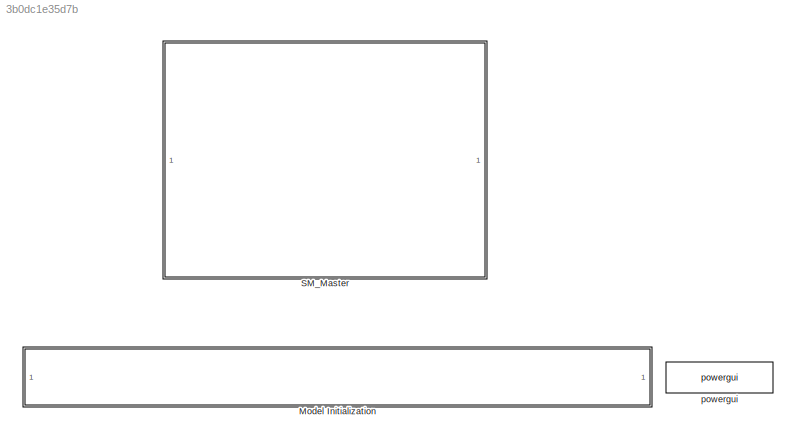
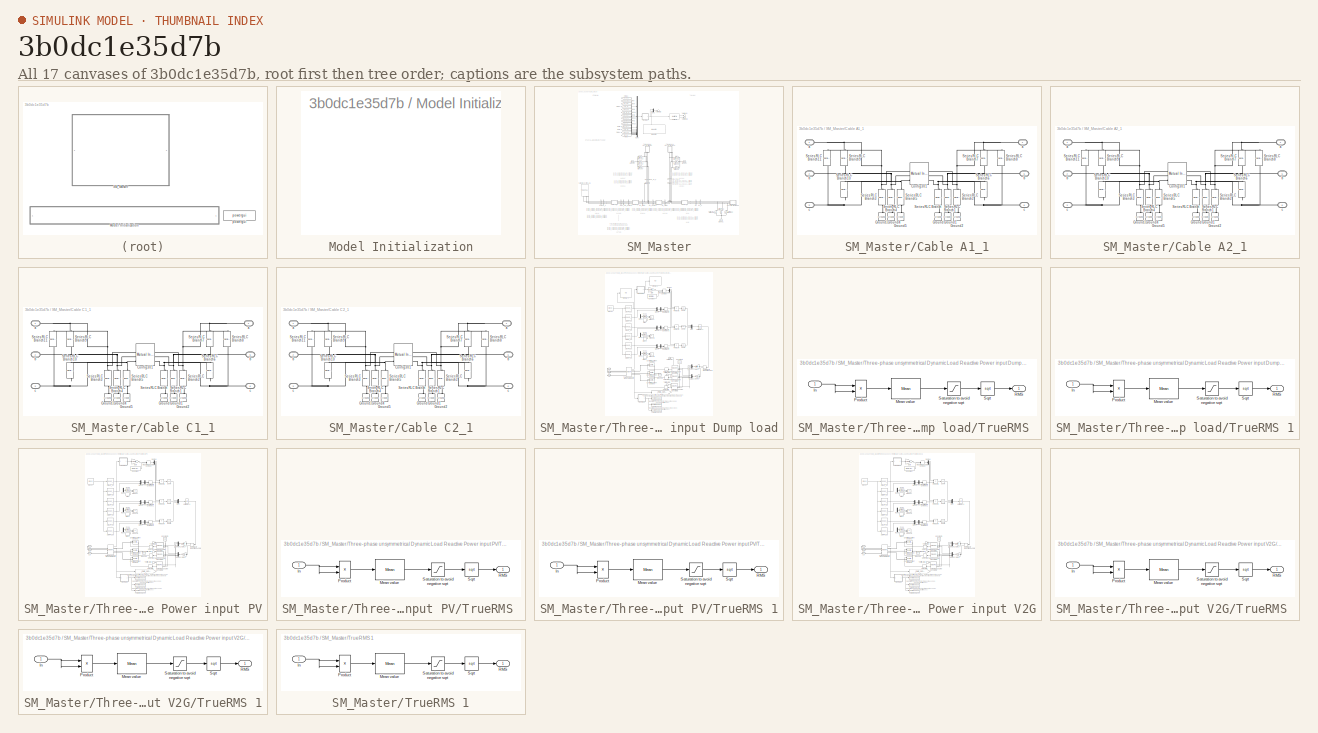
[diagram: thumbnail index - all 17 canvases of the model, root first then tree order]
MODEL slx_3b0dc1e35d7b
KIND model
CONFIG AbsTol = auto
CONFIG EnableMultiTasking = off
CONFIG FixedStep = Ts
CONFIG InitFcn = Ts=1e-4;run('Grid_Parameters_3ph.m');load('Data_3ph_Pars.mat');load('First_Busbar_Pars.mat');load('PV_Busbar_Pars.mat');load('V2G_Busbar_Pars.mat');run('line_parameters.m')
CONFIG MaxStep = auto
CONFIG MinStep = auto
CONFIG PostLoadFcn = Ts=1e-4;run('Grid_Parameters_3ph.m');load('Data_3ph_Pars.mat');load('First_Busbar_Pars.mat');load('PV_Busbar_Pars.mat');load('V2G_Busbar_Pars.mat');run('line_parameters.m')
CONFIG PreLoadFcn = Ts=1e-4;run('Grid_Parameters_3ph.m');load('Data_3ph_Pars.mat');load('First_Busbar_Pars.mat');load('PV_Busbar_Pars.mat');load('V2G_Busbar_Pars.mat');run('line_parameters.m')
CONFIG RelTol = 1e-3
CONFIG SampleTimeConstraint = Unconstrained
CONFIG SolverName = ode4
CONFIG StartFcn = Ts=1e-4;run('Grid_Parameters_3ph.m');load('Data_3ph_Pars.mat');load('First_Busbar_Pars.mat');load('PV_Busbar_Pars.mat');load('V2G_Busbar_Pars.mat');run('line_parameters.m')
CONFIG StartTime = 0.0
CONFIG StopTime = stoptime
BLOCK [SubSystem] Model Initialization
  CopyFcn = set_param(gcb,'LinkStatus','none')
BLOCK [SubSystem] SM_Master
BLOCK [Reference] SM_Master/B1  REF=spsThreePhaseVIMeasurementLib/Three-Phase
V-I Measurement
  LibrarySourceBlock = sps_lib/Sensors and Measurements/Three-Phase\nV-I Measurement
  SourceBlock = spsThreePhaseVIMeasurementLib/Three-Phase\nV-I Measurement
  SourceType = Three-Phase VI Measurement
BLOCK [Reference] SM_Master/B1_afterC1  REF=spsThreePhaseVIMeasurementLib/Three-Phase
V-I Measurement
  LibrarySourceBlock = sps_lib/Sensors and Measurements/Three-Phase\nV-I Measurement
  SourceBlock = spsThreePhaseVIMeasurementLib/Three-Phase\nV-I Measurement
  SourceType = Three-Phase VI Measurement
BLOCK [Reference] SM_Master/B1_afterC2  REF=spsThreePhaseVIMeasurementLib/Three-Phase
V-I Measurement
  LibrarySourceBlock = sps_lib/Sensors and Measurements/Three-Phase\nV-I Measurement
  SourceBlock = spsThreePhaseVIMeasurementLib/Three-Phase\nV-I Measurement
  SourceType = Three-Phase VI Measurement
BLOCK [Reference] SM_Master/B1_beforeC1  REF=spsThreePhaseVIMeasurementLib/Three-Phase
V-I Measurement
  LibrarySourceBlock = sps_lib/Sensors and Measurements/Three-Phase\nV-I Measurement
  SourceBlock = spsThreePhaseVIMeasurementLib/Three-Phase\nV-I Measurement
  SourceType = Three-Phase VI Measurement
BLOCK [Reference] SM_Master/B1_beforeC2  REF=spsThreePhaseVIMeasurementLib/Three-Phase
V-I Measurement
  LibrarySourceBlock = sps_lib/Sensors and Measurements/Three-Phase\nV-I Measurement
  SourceBlock = spsThreePhaseVIMeasurementLib/Three-Phase\nV-I Measurement
  SourceType = Three-Phase VI Measurement
BLOCK [Reference] SM_Master/B1_n  REF=spsThreePhaseVIMeasurementLib/Three-Phase
V-I Measurement
  LibrarySourceBlock = sps_lib/Sensors and Measurements/Three-Phase\nV-I Measurement
  SourceBlock = spsThreePhaseVIMeasurementLib/Three-Phase\nV-I Measurement
  SourceType = Three-Phase VI Measurement
BLOCK [Reference] SM_Master/B2_PV  REF=spsThreePhaseVIMeasurementLib/Three-Phase
V-I Measurement
  LibrarySourceBlock = sps_lib/Sensors and Measurements/Three-Phase\nV-I Measurement
  NameLocation = right
  SourceBlock = spsThreePhaseVIMeasurementLib/Three-Phase\nV-I Measurement
  SourceType = Three-Phase VI Measurement
BLOCK [Reference] SM_Master/B2_PV_n  REF=spsThreePhaseVIMeasurementLib/Three-Phase
V-I Measurement
  LibrarySourceBlock = sps_lib/Sensors and Measurements/Three-Phase\nV-I Measurement
  NameLocation = right
  SourceBlock = spsThreePhaseVIMeasurementLib/Three-Phase\nV-I Measurement
  SourceType = Three-Phase VI Measurement
BLOCK [Reference] SM_Master/B3_V2G  REF=spsThreePhaseVIMeasurementLib/Three-Phase
V-I Measurement
  LibrarySourceBlock = sps_lib/Sensors and Measurements/Three-Phase\nV-I Measurement
  NameLocation = right
  SourceBlock = spsThreePhaseVIMeasurementLib/Three-Phase\nV-I Measurement
  SourceType = Three-Phase VI Measurement
BLOCK [Reference] SM_Master/B3_V2G_n  REF=spsThreePhaseVIMeasurementLib/Three-Phase
V-I Measurement
  LibrarySourceBlock = sps_lib/Sensors and Measurements/Three-Phase\nV-I Measurement
  NameLocation = right
  SourceBlock = spsThreePhaseVIMeasurementLib/Three-Phase\nV-I Measurement
  SourceType = Three-Phase VI Measurement
BLOCK [Reference] SM_Master/B4  REF=spsThreePhaseVIMeasurementLib/Three-Phase
V-I Measurement
  LibrarySourceBlock = sps_lib/Sensors and Measurements/Three-Phase\nV-I Measurement
  SourceBlock = spsThreePhaseVIMeasurementLib/Three-Phase\nV-I Measurement
  SourceType = Three-Phase VI Measurement
BLOCK [Reference] SM_Master/B4_n  REF=spsThreePhaseVIMeasurementLib/Three-Phase
V-I Measurement
  LibrarySourceBlock = sps_lib/Sensors and Measurements/Three-Phase\nV-I Measurement
  SourceBlock = spsThreePhaseVIMeasurementLib/Three-Phase\nV-I Measurement
  SourceType = Three-Phase VI Measurement
BLOCK [Reference] SM_Master/BG0  REF=spsThreePhaseVIMeasurementLib/Three-Phase
V-I Measurement
  LibrarySourceBlock = sps_lib/Sensors and Measurements/Three-Phase\nV-I Measurement
  SourceBlock = spsThreePhaseVIMeasurementLib/Three-Phase\nV-I Measurement
  SourceType = Three-Phase VI Measurement
BLOCK [Reference] SM_Master/BG0_n  REF=spsThreePhaseVIMeasurementLib/Three-Phase
V-I Measurement
  LibrarySourceBlock = sps_lib/Sensors and Measurements/Three-Phase\nV-I Measurement
  SourceBlock = spsThreePhaseVIMeasurementLib/Three-Phase\nV-I Measurement
  SourceType = Three-Phase VI Measurement
BLOCK [SubSystem] SM_Master/Cable A1_1
BLOCK [Reference] SM_Master/Cable A1_1/Config301  REF=spsMutualInductanceLib/Mutual Inductance
  AttributesFormatString = \n
  LibrarySourceBlock = sps_lib/Passives/Mutual Inductance
  SourceBlock = spsMutualInductanceLib/Mutual Inductance
  SourceType = Mutual Inductance
BLOCK [Reference] SM_Master/Cable A1_1/Ground  REF=spsGroundLib/Ground
  LibrarySourceBlock = sps_lib/Utilities/Ground
  NameLocation = right
  SourceBlock = spsGroundLib/Ground
  SourceType = Ground
BLOCK [Reference] SM_Master/Cable A1_1/Ground1  REF=spsGroundLib/Ground
  LibrarySourceBlock = sps_lib/Utilities/Ground
  NameLocation = right
  SourceBlock = spsGroundLib/Ground
  SourceType = Ground
BLOCK [Reference] SM_Master/Cable A1_1/Ground2  REF=spsGroundLib/Ground
  LibrarySourceBlock = sps_lib/Utilities/Ground
  NameLocation = right
  SourceBlock = spsGroundLib/Ground
  SourceType = Ground
BLOCK [Reference] SM_Master/Cable A1_1/Ground3  REF=spsGroundLib/Ground
  LibrarySourceBlock = sps_lib/Utilities/Ground
  NameLocation = right
  SourceBlock = spsGroundLib/Ground
  SourceType = Ground
BLOCK [Reference] SM_Master/Cable A1_1/Ground4  REF=spsGroundLib/Ground
  LibrarySourceBlock = sps_lib/Utilities/Ground
  NameLocation = right
  SourceBlock = spsGroundLib/Ground
  SourceType = Ground
BLOCK [Reference] SM_Master/Cable A1_1/Ground5  REF=spsGroundLib/Ground
  LibrarySourceBlock = sps_lib/Utilities/Ground
  NameLocation = right
  SourceBlock = spsGroundLib/Ground
  SourceType = Ground
BLOCK [Reference] SM_Master/Cable A1_1/Series RLC Branch  REF=spsSeriesRLCBranchLib/Series RLC Branch
  LibrarySourceBlock = sps_lib/Passives/Series RLC Branch
  NameLocation = left
  SourceBlock = spsSeriesRLCBranchLib/Series RLC Branch
  SourceType = Series RLC Branch
BLOCK [Reference] SM_Master/Cable A1_1/Series RLC Branch1  REF=spsSeriesRLCBranchLib/Series RLC Branch
  LibrarySourceBlock = sps_lib/Passives/Series RLC Branch
  NameLocation = left
  SourceBlock = spsSeriesRLCBranchLib/Series RLC Branch
  SourceType = Series RLC Branch
BLOCK [Reference] SM_Master/Cable A1_1/Series RLC Branch10  REF=spsSeriesRLCBranchLib/Series RLC Branch
  LibrarySourceBlock = sps_lib/Passives/Series RLC Branch
  NameLocation = left
  SourceBlock = spsSeriesRLCBranchLib/Series RLC Branch
  SourceType = Series RLC Branch
BLOCK [Reference] SM_Master/Cable A1_1/Series RLC Branch11  REF=spsSeriesRLCBranchLib/Series RLC Branch
  LibrarySourceBlock = sps_lib/Passives/Series RLC Branch
  NameLocation = left
  SourceBlock = spsSeriesRLCBranchLib/Series RLC Branch
  SourceType = Series RLC Branch
BLOCK [Reference] SM_Master/Cable A1_1/Series RLC Branch2  REF=spsSeriesRLCBranchLib/Series RLC Branch
  LibrarySourceBlock = sps_lib/Passives/Series RLC Branch
  NameLocation = left
  SourceBlock = spsSeriesRLCBranchLib/Series RLC Branch
  SourceType = Series RLC Branch
BLOCK [Reference] SM_Master/Cable A1_1/Series RLC Branch3  REF=spsSeriesRLCBranchLib/Series RLC Branch
  LibrarySourceBlock = sps_lib/Passives/Series RLC Branch
  NameLocation = left
  SourceBlock = spsSeriesRLCBranchLib/Series RLC Branch
  SourceType = Series RLC Branch
BLOCK [Reference] SM_Master/Cable A1_1/Series RLC Branch4  REF=spsSeriesRLCBranchLib/Series RLC Branch
  LibrarySourceBlock = sps_lib/Passives/Series RLC Branch
  NameLocation = left
  SourceBlock = spsSeriesRLCBranchLib/Series RLC Branch
  SourceType = Series RLC Branch
BLOCK [Reference] SM_Master/Cable A1_1/Series RLC Branch5  REF=spsSeriesRLCBranchLib/Series RLC Branch
  LibrarySourceBlock = sps_lib/Passives/Series RLC Branch
  NameLocation = left
  SourceBlock = spsSeriesRLCBranchLib/Series RLC Branch
  SourceType = Series RLC Branch
BLOCK [Reference] SM_Master/Cable A1_1/Series RLC Branch6  REF=spsSeriesRLCBranchLib/Series RLC Branch
  LibrarySourceBlock = sps_lib/Passives/Series RLC Branch
  NameLocation = left
  SourceBlock = spsSeriesRLCBranchLib/Series RLC Branch
  SourceType = Series RLC Branch
BLOCK [Reference] SM_Master/Cable A1_1/Series RLC Branch7  REF=spsSeriesRLCBranchLib/Series RLC Branch
  LibrarySourceBlock = sps_lib/Passives/Series RLC Branch
  NameLocation = left
  SourceBlock = spsSeriesRLCBranchLib/Series RLC Branch
  SourceType = Series RLC Branch
BLOCK [Reference] SM_Master/Cable A1_1/Series RLC Branch8  REF=spsSeriesRLCBranchLib/Series RLC Branch
  LibrarySourceBlock = sps_lib/Passives/Series RLC Branch
  NameLocation = left
  SourceBlock = spsSeriesRLCBranchLib/Series RLC Branch
  SourceType = Series RLC Branch
BLOCK [Reference] SM_Master/Cable A1_1/Series RLC Branch9  REF=spsSeriesRLCBranchLib/Series RLC Branch
  LibrarySourceBlock = sps_lib/Passives/Series RLC Branch
  NameLocation = left
  SourceBlock = spsSeriesRLCBranchLib/Series RLC Branch
  SourceType = Series RLC Branch
BLOCK [PMIOPort] SM_Master/Cable A1_1/a
  Side = Left
  Tag = PMCPort
BLOCK [PMIOPort] SM_Master/Cable A1_1/a 
  NameLocation = top
  Port = 4
  Side = Right
  Tag = PMCPort
BLOCK [PMIOPort] SM_Master/Cable A1_1/b
  Port = 2
  Side = Left
  Tag = PMCPort
BLOCK [PMIOPort] SM_Master/Cable A1_1/b 
  NameLocation = top
  Port = 5
  Side = Right
  Tag = PMCPort
BLOCK [PMIOPort] SM_Master/Cable A1_1/c
  Port = 3
  Side = Left
  Tag = PMCPort
BLOCK [PMIOPort] SM_Master/Cable A1_1/c 
  NameLocation = top
  Port = 6
  Side = Right
  Tag = PMCPort
BLOCK [SubSystem] SM_Master/Cable A2_1
BLOCK [Reference] SM_Master/Cable A2_1/Config301  REF=spsMutualInductanceLib/Mutual Inductance
  AttributesFormatString = \n
  LibrarySourceBlock = sps_lib/Passives/Mutual Inductance
  SourceBlock = spsMutualInductanceLib/Mutual Inductance
  SourceType = Mutual Inductance
BLOCK [Reference] SM_Master/Cable A2_1/Ground  REF=spsGroundLib/Ground
  LibrarySourceBlock = sps_lib/Utilities/Ground
  NameLocation = right
  SourceBlock = spsGroundLib/Ground
  SourceType = Ground
BLOCK [Reference] SM_Master/Cable A2_1/Ground1  REF=spsGroundLib/Ground
  LibrarySourceBlock = sps_lib/Utilities/Ground
  NameLocation = right
  SourceBlock = spsGroundLib/Ground
  SourceType = Ground
BLOCK [Reference] SM_Master/Cable A2_1/Ground2  REF=spsGroundLib/Ground
  LibrarySourceBlock = sps_lib/Utilities/Ground
  NameLocation = right
  SourceBlock = spsGroundLib/Ground
  SourceType = Ground
BLOCK [Reference] SM_Master/Cable A2_1/Ground3  REF=spsGroundLib/Ground
  LibrarySourceBlock = sps_lib/Utilities/Ground
  NameLocation = right
  SourceBlock = spsGroundLib/Ground
  SourceType = Ground
BLOCK [Reference] SM_Master/Cable A2_1/Ground4  REF=spsGroundLib/Ground
  LibrarySourceBlock = sps_lib/Utilities/Ground
  NameLocation = right
  SourceBlock = spsGroundLib/Ground
  SourceType = Ground
BLOCK [Reference] SM_Master/Cable A2_1/Ground5  REF=spsGroundLib/Ground
  LibrarySourceBlock = sps_lib/Utilities/Ground
  NameLocation = right
  SourceBlock = spsGroundLib/Ground
  SourceType = Ground
BLOCK [Reference] SM_Master/Cable A2_1/Series RLC Branch  REF=spsSeriesRLCBranchLib/Series RLC Branch
  LibrarySourceBlock = sps_lib/Passives/Series RLC Branch
  NameLocation = left
  SourceBlock = spsSeriesRLCBranchLib/Series RLC Branch
  SourceType = Series RLC Branch
BLOCK [Reference] SM_Master/Cable A2_1/Series RLC Branch1  REF=spsSeriesRLCBranchLib/Series RLC Branch
  LibrarySourceBlock = sps_lib/Passives/Series RLC Branch
  NameLocation = left
  SourceBlock = spsSeriesRLCBranchLib/Series RLC Branch
  SourceType = Series RLC Branch
BLOCK [Reference] SM_Master/Cable A2_1/Series RLC Branch10  REF=spsSeriesRLCBranchLib/Series RLC Branch
  LibrarySourceBlock = sps_lib/Passives/Series RLC Branch
  NameLocation = left
  SourceBlock = spsSeriesRLCBranchLib/Series RLC Branch
  SourceType = Series RLC Branch
BLOCK [Reference] SM_Master/Cable A2_1/Series RLC Branch11  REF=spsSeriesRLCBranchLib/Series RLC Branch
  LibrarySourceBlock = sps_lib/Passives/Series RLC Branch
  NameLocation = left
  SourceBlock = spsSeriesRLCBranchLib/Series RLC Branch
  SourceType = Series RLC Branch
BLOCK [Reference] SM_Master/Cable A2_1/Series RLC Branch2  REF=spsSeriesRLCBranchLib/Series RLC Branch
  LibrarySourceBlock = sps_lib/Passives/Series RLC Branch
  NameLocation = left
  SourceBlock = spsSeriesRLCBranchLib/Series RLC Branch
  SourceType = Series RLC Branch
BLOCK [Reference] SM_Master/Cable A2_1/Series RLC Branch3  REF=spsSeriesRLCBranchLib/Series RLC Branch
  LibrarySourceBlock = sps_lib/Passives/Series RLC Branch
  NameLocation = left
  SourceBlock = spsSeriesRLCBranchLib/Series RLC Branch
  SourceType = Series RLC Branch
BLOCK [Reference] SM_Master/Cable A2_1/Series RLC Branch4  REF=spsSeriesRLCBranchLib/Series RLC Branch
  LibrarySourceBlock = sps_lib/Passives/Series RLC Branch
  NameLocation = left
  SourceBlock = spsSeriesRLCBranchLib/Series RLC Branch
  SourceType = Series RLC Branch
BLOCK [Reference] SM_Master/Cable A2_1/Series RLC Branch5  REF=spsSeriesRLCBranchLib/Series RLC Branch
  LibrarySourceBlock = sps_lib/Passives/Series RLC Branch
  NameLocation = left
  SourceBlock = spsSeriesRLCBranchLib/Series RLC Branch
  SourceType = Series RLC Branch
BLOCK [Reference] SM_Master/Cable A2_1/Series RLC Branch6  REF=spsSeriesRLCBranchLib/Series RLC Branch
  LibrarySourceBlock = sps_lib/Passives/Series RLC Branch
  NameLocation = left
  SourceBlock = spsSeriesRLCBranchLib/Series RLC Branch
  SourceType = Series RLC Branch
BLOCK [Reference] SM_Master/Cable A2_1/Series RLC Branch7  REF=spsSeriesRLCBranchLib/Series RLC Branch
  LibrarySourceBlock = sps_lib/Passives/Series RLC Branch
  NameLocation = left
  SourceBlock = spsSeriesRLCBranchLib/Series RLC Branch
  SourceType = Series RLC Branch
BLOCK [Reference] SM_Master/Cable A2_1/Series RLC Branch8  REF=spsSeriesRLCBranchLib/Series RLC Branch
  LibrarySourceBlock = sps_lib/Passives/Series RLC Branch
  NameLocation = left
  SourceBlock = spsSeriesRLCBranchLib/Series RLC Branch
  SourceType = Series RLC Branch
BLOCK [Reference] SM_Master/Cable A2_1/Series RLC Branch9  REF=spsSeriesRLCBranchLib/Series RLC Branch
  LibrarySourceBlock = sps_lib/Passives/Series RLC Branch
  NameLocation = left
  SourceBlock = spsSeriesRLCBranchLib/Series RLC Branch
  SourceType = Series RLC Branch
BLOCK [PMIOPort] SM_Master/Cable A2_1/a
  Side = Left
  Tag = PMCPort
BLOCK [PMIOPort] SM_Master/Cable A2_1/a 
  NameLocation = top
  Port = 4
  Side = Right
  Tag = PMCPort
BLOCK [PMIOPort] SM_Master/Cable A2_1/b
  Port = 2
  Side = Left
  Tag = PMCPort
BLOCK [PMIOPort] SM_Master/Cable A2_1/b 
  NameLocation = top
  Port = 5
  Side = Right
  Tag = PMCPort
BLOCK [PMIOPort] SM_Master/Cable A2_1/c
  Port = 3
  Side = Left
  Tag = PMCPort
BLOCK [PMIOPort] SM_Master/Cable A2_1/c 
  NameLocation = top
  Port = 6
  Side = Right
  Tag = PMCPort
BLOCK [SubSystem] SM_Master/Cable C1_1
BLOCK [Reference] SM_Master/Cable C1_1/Config301  REF=spsMutualInductanceLib/Mutual Inductance
  AttributesFormatString = \n
  LibrarySourceBlock = sps_lib/Passives/Mutual Inductance
  SourceBlock = spsMutualInductanceLib/Mutual Inductance
  SourceType = Mutual Inductance
BLOCK [Reference] SM_Master/Cable C1_1/Ground  REF=spsGroundLib/Ground
  LibrarySourceBlock = sps_lib/Utilities/Ground
  NameLocation = right
  SourceBlock = spsGroundLib/Ground
  SourceType = Ground
BLOCK [Reference] SM_Master/Cable C1_1/Ground1  REF=spsGroundLib/Ground
  LibrarySourceBlock = sps_lib/Utilities/Ground
  NameLocation = right
  SourceBlock = spsGroundLib/Ground
  SourceType = Ground
BLOCK [Reference] SM_Master/Cable C1_1/Ground2  REF=spsGroundLib/Ground
  LibrarySourceBlock = sps_lib/Utilities/Ground
  NameLocation = right
  SourceBlock = spsGroundLib/Ground
  SourceType = Ground
BLOCK [Reference] SM_Master/Cable C1_1/Ground3  REF=spsGroundLib/Ground
  LibrarySourceBlock = sps_lib/Utilities/Ground
  NameLocation = right
  SourceBlock = spsGroundLib/Ground
  SourceType = Ground
BLOCK [Reference] SM_Master/Cable C1_1/Ground4  REF=spsGroundLib/Ground
  LibrarySourceBlock = sps_lib/Utilities/Ground
  NameLocation = right
  SourceBlock = spsGroundLib/Ground
  SourceType = Ground
BLOCK [Reference] SM_Master/Cable C1_1/Ground5  REF=spsGroundLib/Ground
  LibrarySourceBlock = sps_lib/Utilities/Ground
  NameLocation = right
  SourceBlock = spsGroundLib/Ground
  SourceType = Ground
BLOCK [Reference] SM_Master/Cable C1_1/Series RLC Branch  REF=spsSeriesRLCBranchLib/Series RLC Branch
  LibrarySourceBlock = sps_lib/Passives/Series RLC Branch
  NameLocation = left
  SourceBlock = spsSeriesRLCBranchLib/Series RLC Branch
  SourceType = Series RLC Branch
BLOCK [Reference] SM_Master/Cable C1_1/Series RLC Branch1  REF=spsSeriesRLCBranchLib/Series RLC Branch
  LibrarySourceBlock = sps_lib/Passives/Series RLC Branch
  NameLocation = left
  SourceBlock = spsSeriesRLCBranchLib/Series RLC Branch
  SourceType = Series RLC Branch
BLOCK [Reference] SM_Master/Cable C1_1/Series RLC Branch10  REF=spsSeriesRLCBranchLib/Series RLC Branch
  LibrarySourceBlock = sps_lib/Passives/Series RLC Branch
  NameLocation = left
  SourceBlock = spsSeriesRLCBranchLib/Series RLC Branch
  SourceType = Series RLC Branch
BLOCK [Reference] SM_Master/Cable C1_1/Series RLC Branch11  REF=spsSeriesRLCBranchLib/Series RLC Branch
  LibrarySourceBlock = sps_lib/Passives/Series RLC Branch
  NameLocation = left
  SourceBlock = spsSeriesRLCBranchLib/Series RLC Branch
  SourceType = Series RLC Branch
BLOCK [Reference] SM_Master/Cable C1_1/Series RLC Branch2  REF=spsSeriesRLCBranchLib/Series RLC Branch
  LibrarySourceBlock = sps_lib/Passives/Series RLC Branch
  NameLocation = left
  SourceBlock = spsSeriesRLCBranchLib/Series RLC Branch
  SourceType = Series RLC Branch
BLOCK [Reference] SM_Master/Cable C1_1/Series RLC Branch3  REF=spsSeriesRLCBranchLib/Series RLC Branch
  LibrarySourceBlock = sps_lib/Passives/Series RLC Branch
  NameLocation = left
  SourceBlock = spsSeriesRLCBranchLib/Series RLC Branch
  SourceType = Series RLC Branch
BLOCK [Reference] SM_Master/Cable C1_1/Series RLC Branch4  REF=spsSeriesRLCBranchLib/Series RLC Branch
  LibrarySourceBlock = sps_lib/Passives/Series RLC Branch
  NameLocation = left
  SourceBlock = spsSeriesRLCBranchLib/Series RLC Branch
  SourceType = Series RLC Branch
BLOCK [Reference] SM_Master/Cable C1_1/Series RLC Branch5  REF=spsSeriesRLCBranchLib/Series RLC Branch
  LibrarySourceBlock = sps_lib/Passives/Series RLC Branch
  NameLocation = left
  SourceBlock = spsSeriesRLCBranchLib/Series RLC Branch
  SourceType = Series RLC Branch
BLOCK [Reference] SM_Master/Cable C1_1/Series RLC Branch6  REF=spsSeriesRLCBranchLib/Series RLC Branch
  LibrarySourceBlock = sps_lib/Passives/Series RLC Branch
  NameLocation = left
  SourceBlock = spsSeriesRLCBranchLib/Series RLC Branch
  SourceType = Series RLC Branch
BLOCK [Reference] SM_Master/Cable C1_1/Series RLC Branch7  REF=spsSeriesRLCBranchLib/Series RLC Branch
  LibrarySourceBlock = sps_lib/Passives/Series RLC Branch
  NameLocation = left
  SourceBlock = spsSeriesRLCBranchLib/Series RLC Branch
  SourceType = Series RLC Branch
BLOCK [Reference] SM_Master/Cable C1_1/Series RLC Branch8  REF=spsSeriesRLCBranchLib/Series RLC Branch
  LibrarySourceBlock = sps_lib/Passives/Series RLC Branch
  NameLocation = left
  SourceBlock = spsSeriesRLCBranchLib/Series RLC Branch
  SourceType = Series RLC Branch
BLOCK [Reference] SM_Master/Cable C1_1/Series RLC Branch9  REF=spsSeriesRLCBranchLib/Series RLC Branch
  LibrarySourceBlock = sps_lib/Passives/Series RLC Branch
  NameLocation = left
  SourceBlock = spsSeriesRLCBranchLib/Series RLC Branch
  SourceType = Series RLC Branch
BLOCK [PMIOPort] SM_Master/Cable C1_1/a
  Side = Left
  Tag = PMCPort
BLOCK [PMIOPort] SM_Master/Cable C1_1/a 
  NameLocation = top
  Port = 4
  Side = Right
  Tag = PMCPort
BLOCK [PMIOPort] SM_Master/Cable C1_1/b
  Port = 2
  Side = Left
  Tag = PMCPort
BLOCK [PMIOPort] SM_Master/Cable C1_1/b 
  NameLocation = top
  Port = 5
  Side = Right
  Tag = PMCPort
BLOCK [PMIOPort] SM_Master/Cable C1_1/c
  Port = 3
  Side = Left
  Tag = PMCPort
BLOCK [PMIOPort] SM_Master/Cable C1_1/c 
  NameLocation = top
  Port = 6
  Side = Right
  Tag = PMCPort
BLOCK [SubSystem] SM_Master/Cable C2_1
BLOCK [Reference] SM_Master/Cable C2_1/Config301  REF=spsMutualInductanceLib/Mutual Inductance
  AttributesFormatString = \n
  LibrarySourceBlock = sps_lib/Passives/Mutual Inductance
  SourceBlock = spsMutualInductanceLib/Mutual Inductance
  SourceType = Mutual Inductance
BLOCK [Reference] SM_Master/Cable C2_1/Ground  REF=spsGroundLib/Ground
  LibrarySourceBlock = sps_lib/Utilities/Ground
  NameLocation = right
  SourceBlock = spsGroundLib/Ground
  SourceType = Ground
BLOCK [Reference] SM_Master/Cable C2_1/Ground1  REF=spsGroundLib/Ground
  LibrarySourceBlock = sps_lib/Utilities/Ground
  NameLocation = right
  SourceBlock = spsGroundLib/Ground
  SourceType = Ground
BLOCK [Reference] SM_Master/Cable C2_1/Ground2  REF=spsGroundLib/Ground
  LibrarySourceBlock = sps_lib/Utilities/Ground
  NameLocation = right
  SourceBlock = spsGroundLib/Ground
  SourceType = Ground
BLOCK [Reference] SM_Master/Cable C2_1/Ground3  REF=spsGroundLib/Ground
  LibrarySourceBlock = sps_lib/Utilities/Ground
  NameLocation = right
  SourceBlock = spsGroundLib/Ground
  SourceType = Ground
BLOCK [Reference] SM_Master/Cable C2_1/Ground4  REF=spsGroundLib/Ground
  LibrarySourceBlock = sps_lib/Utilities/Ground
  NameLocation = right
  SourceBlock = spsGroundLib/Ground
  SourceType = Ground
BLOCK [Reference] SM_Master/Cable C2_1/Ground5  REF=spsGroundLib/Ground
  LibrarySourceBlock = sps_lib/Utilities/Ground
  NameLocation = right
  SourceBlock = spsGroundLib/Ground
  SourceType = Ground
BLOCK [Reference] SM_Master/Cable C2_1/Series RLC Branch  REF=spsSeriesRLCBranchLib/Series RLC Branch
  LibrarySourceBlock = sps_lib/Passives/Series RLC Branch
  NameLocation = left
  SourceBlock = spsSeriesRLCBranchLib/Series RLC Branch
  SourceType = Series RLC Branch
BLOCK [Reference] SM_Master/Cable C2_1/Series RLC Branch1  REF=spsSeriesRLCBranchLib/Series RLC Branch
  LibrarySourceBlock = sps_lib/Passives/Series RLC Branch
  NameLocation = left
  SourceBlock = spsSeriesRLCBranchLib/Series RLC Branch
  SourceType = Series RLC Branch
BLOCK [Reference] SM_Master/Cable C2_1/Series RLC Branch10  REF=spsSeriesRLCBranchLib/Series RLC Branch
  LibrarySourceBlock = sps_lib/Passives/Series RLC Branch
  NameLocation = left
  SourceBlock = spsSeriesRLCBranchLib/Series RLC Branch
  SourceType = Series RLC Branch
BLOCK [Reference] SM_Master/Cable C2_1/Series RLC Branch11  REF=spsSeriesRLCBranchLib/Series RLC Branch
  LibrarySourceBlock = sps_lib/Passives/Series RLC Branch
  NameLocation = left
  SourceBlock = spsSeriesRLCBranchLib/Series RLC Branch
  SourceType = Series RLC Branch
BLOCK [Reference] SM_Master/Cable C2_1/Series RLC Branch2  REF=spsSeriesRLCBranchLib/Series RLC Branch
  LibrarySourceBlock = sps_lib/Passives/Series RLC Branch
  NameLocation = left
  SourceBlock = spsSeriesRLCBranchLib/Series RLC Branch
  SourceType = Series RLC Branch
BLOCK [Reference] SM_Master/Cable C2_1/Series RLC Branch3  REF=spsSeriesRLCBranchLib/Series RLC Branch
  LibrarySourceBlock = sps_lib/Passives/Series RLC Branch
  NameLocation = left
  SourceBlock = spsSeriesRLCBranchLib/Series RLC Branch
  SourceType = Series RLC Branch
BLOCK [Reference] SM_Master/Cable C2_1/Series RLC Branch4  REF=spsSeriesRLCBranchLib/Series RLC Branch
  LibrarySourceBlock = sps_lib/Passives/Series RLC Branch
  NameLocation = left
  SourceBlock = spsSeriesRLCBranchLib/Series RLC Branch
  SourceType = Series RLC Branch
BLOCK [Reference] SM_Master/Cable C2_1/Series RLC Branch5  REF=spsSeriesRLCBranchLib/Series RLC Branch
  LibrarySourceBlock = sps_lib/Passives/Series RLC Branch
  NameLocation = left
  SourceBlock = spsSeriesRLCBranchLib/Series RLC Branch
  SourceType = Series RLC Branch
BLOCK [Reference] SM_Master/Cable C2_1/Series RLC Branch6  REF=spsSeriesRLCBranchLib/Series RLC Branch
  LibrarySourceBlock = sps_lib/Passives/Series RLC Branch
  NameLocation = left
  SourceBlock = spsSeriesRLCBranchLib/Series RLC Branch
  SourceType = Series RLC Branch
BLOCK [Reference] SM_Master/Cable C2_1/Series RLC Branch7  REF=spsSeriesRLCBranchLib/Series RLC Branch
  LibrarySourceBlock = sps_lib/Passives/Series RLC Branch
  NameLocation = left
  SourceBlock = spsSeriesRLCBranchLib/Series RLC Branch
  SourceType = Series RLC Branch
BLOCK [Reference] SM_Master/Cable C2_1/Series RLC Branch8  REF=spsSeriesRLCBranchLib/Series RLC Branch
  LibrarySourceBlock = sps_lib/Passives/Series RLC Branch
  NameLocation = left
  SourceBlock = spsSeriesRLCBranchLib/Series RLC Branch
  SourceType = Series RLC Branch
BLOCK [Reference] SM_Master/Cable C2_1/Series RLC Branch9  REF=spsSeriesRLCBranchLib/Series RLC Branch
  LibrarySourceBlock = sps_lib/Passives/Series RLC Branch
  NameLocation = left
  SourceBlock = spsSeriesRLCBranchLib/Series RLC Branch
  SourceType = Series RLC Branch
BLOCK [PMIOPort] SM_Master/Cable C2_1/a
  Side = Left
  Tag = PMCPort
BLOCK [PMIOPort] SM_Master/Cable C2_1/a 
  NameLocation = top
  Port = 4
  Side = Right
  Tag = PMCPort
BLOCK [PMIOPort] SM_Master/Cable C2_1/b
  Port = 2
  Side = Left
  Tag = PMCPort
BLOCK [PMIOPort] SM_Master/Cable C2_1/b 
  NameLocation = top
  Port = 5
  Side = Right
  Tag = PMCPort
BLOCK [PMIOPort] SM_Master/Cable C2_1/c
  Port = 3
  Side = Left
  Tag = PMCPort
BLOCK [PMIOPort] SM_Master/Cable C2_1/c 
  NameLocation = top
  Port = 6
  Side = Right
  Tag = PMCPort
BLOCK [From] SM_Master/From
  GotoTag = Vabcn_BG0
  TagVisibility = global
BLOCK [From] SM_Master/From1
  GotoTag = Vabc_B3_V2G
  TagVisibility = global
BLOCK [From] SM_Master/From10
  GotoTag = Vabcn_B3_V2G
  TagVisibility = global
BLOCK [From] SM_Master/From11
  GotoTag = Vabcn_B4
  TagVisibility = global
BLOCK [From] SM_Master/From12
  GotoTag = Iabc_B2_PV
  TagVisibility = global
BLOCK [From] SM_Master/From14
  GotoTag = Vabc_B2_PV
  TagVisibility = global
BLOCK [From] SM_Master/From19
  GotoTag = Vabc_BG0
  TagVisibility = global
BLOCK [From] SM_Master/From2
  GotoTag = Vabcn_B1
  TagVisibility = global
BLOCK [From] SM_Master/From20
  GotoTag = Vabc_B1
  TagVisibility = global
BLOCK [From] SM_Master/From3
  GotoTag = Vabcn_B2_PV
  TagVisibility = global
BLOCK [From] SM_Master/From4
  GotoTag = Vabc_B4
  TagVisibility = global
BLOCK [From] SM_Master/From5
  GotoTag = Iabc_B3_V2G
  TagVisibility = global
BLOCK [From] SM_Master/From6
  GotoTag = Iabc_B4
  TagVisibility = global
BLOCK [From] SM_Master/From7
  GotoTag = Iabc_BG0
  TagVisibility = global
BLOCK [Reference] SM_Master/Ground1  REF=spsGroundLib/Ground
  LibrarySourceBlock = sps_lib/Utilities/Ground
  NameLocation = right
  SourceBlock = spsGroundLib/Ground
  SourceType = Ground
BLOCK [Reference] SM_Master/Ground2  REF=spsGroundLib/Ground
  LibrarySourceBlock = sps_lib/Utilities/Ground
  NameLocation = top
  SourceBlock = spsGroundLib/Ground
  SourceType = Ground
BLOCK [Reference] SM_Master/Ground3  REF=spsGroundLib/Ground
  LibrarySourceBlock = sps_lib/Utilities/Ground
  SourceBlock = spsGroundLib/Ground
  SourceType = Ground
BLOCK [Mux] SM_Master/Mux2
  DisplayOption = bar
  Inputs = 2
BLOCK [Mux] SM_Master/Mux3
  DisplayOption = bar
  Inputs = 3*ones(1,14)
BLOCK [Reference] SM_Master/Network 400Vrms LN 1  REF=spsThreePhaseSourceLib/Three-Phase Source
  LibrarySourceBlock = sps_lib/Sources/Three-Phase Source
  SourceBlock = spsThreePhaseSourceLib/Three-Phase Source
  SourceType = Three-Phase Source
BLOCK [Reference] SM_Master/OpMonitor  REF=rtlab/Monitoring/OpMonitor
  Commented = on
  SourceBlock = rtlab/Monitoring/OpMonitor
  SourceProductName = RT-LAB
  SourceType = OpMonitor
BLOCK [Reference] SM_Master/OpWriteFile  REF=rtlab/DataLogging/OpWriteFile
  SourceBlock = rtlab/DataLogging/OpWriteFile
  SourceProductName = RT-LAB
  SourceType = OpWriteFile
BLOCK [Reference] SM_Master/Series RLC Branch1  REF=spsSeriesRLCBranchLib/Series RLC Branch
  LibrarySourceBlock = sps_lib/Passives/Series RLC Branch
  NameLocation = left
  SourceBlock = spsSeriesRLCBranchLib/Series RLC Branch
  SourceType = Series RLC Branch
BLOCK [Reference] SM_Master/Series RLC Branch10  REF=spsSeriesRLCBranchLib/Series RLC Branch
  LibrarySourceBlock = sps_lib/Passives/Series RLC Branch
  NameLocation = top
  SourceBlock = spsSeriesRLCBranchLib/Series RLC Branch
  SourceType = Series RLC Branch
BLOCK [Reference] SM_Master/Series RLC Branch11  REF=spsSeriesRLCBranchLib/Series RLC Branch
  LibrarySourceBlock = sps_lib/Passives/Series RLC Branch
  NameLocation = top
  SourceBlock = spsSeriesRLCBranchLib/Series RLC Branch
  SourceType = Series RLC Branch
BLOCK [Reference] SM_Master/Series RLC Branch12  REF=spsSeriesRLCBranchLib/Series RLC Branch
  LibrarySourceBlock = sps_lib/Passives/Series RLC Branch
  SourceBlock = spsSeriesRLCBranchLib/Series RLC Branch
  SourceType = Series RLC Branch
BLOCK [Reference] SM_Master/Series RLC Branch2  REF=spsSeriesRLCBranchLib/Series RLC Branch
  LibrarySourceBlock = sps_lib/Passives/Series RLC Branch
  NameLocation = left
  SourceBlock = spsSeriesRLCBranchLib/Series RLC Branch
  SourceType = Series RLC Branch
BLOCK [Reference] SM_Master/Series RLC Branch3  REF=spsSeriesRLCBranchLib/Series RLC Branch
  LibrarySourceBlock = sps_lib/Passives/Series RLC Branch
  NameLocation = left
  SourceBlock = spsSeriesRLCBranchLib/Series RLC Branch
  SourceType = Series RLC Branch
BLOCK [Reference] SM_Master/Series RLC Branch4  REF=spsSeriesRLCBranchLib/Series RLC Branch
  LibrarySourceBlock = sps_lib/Passives/Series RLC Branch
  SourceBlock = spsSeriesRLCBranchLib/Series RLC Branch
  SourceType = Series RLC Branch
BLOCK [Reference] SM_Master/Series RLC Branch5  REF=spsSeriesRLCBranchLib/Series RLC Branch
  LibrarySourceBlock = sps_lib/Passives/Series RLC Branch
  SourceBlock = spsSeriesRLCBranchLib/Series RLC Branch
  SourceType = Series RLC Branch
BLOCK [Reference] SM_Master/Series RLC Branch9  REF=spsSeriesRLCBranchLib/Series RLC Branch
  LibrarySourceBlock = sps_lib/Passives/Series RLC Branch
  NameLocation = top
  SourceBlock = spsSeriesRLCBranchLib/Series RLC Branch
  SourceType = Series RLC Branch
BLOCK [Terminator] SM_Master/Terminator
BLOCK [Terminator] SM_Master/Terminator1
BLOCK [Terminator] SM_Master/Terminator2
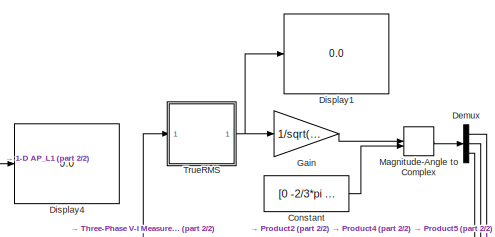
[diagram: SM_Master/Three-phase unsymmetrical Dynamic Load Reactive Power input Dump load - part 1/2, top center region]
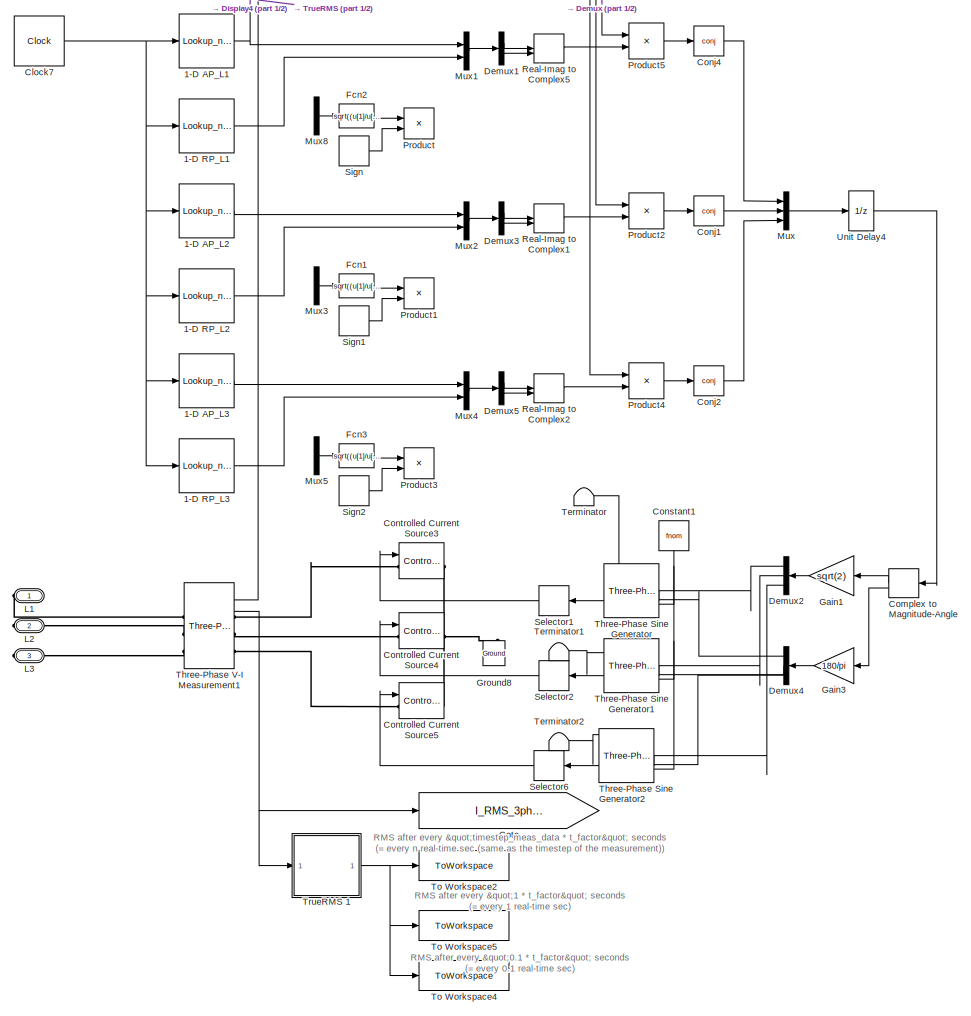
[diagram: SM_Master/Three-phase unsymmetrical Dynamic Load Reactive Power input Dump load - part 2/2, most of the canvas]
BLOCK [SubSystem] SM_Master/Three-phase unsymmetrical Dynamic Load Reactive Power input Dump load
BLOCK [Lookup_n-D] SM_Master/Three-phase unsymmetrical Dynamic Load Reactive Power input Dump load/1-D AP_L1
  BreakpointsForDimension1 = t_factor * [0:timestep_meas_data:(Data_3ph_Pars.Time(datastop)-Data_3ph_Pars.Time(datastart))]'
  InputPortMap = u0
  InternalRulePriority = Speed
  InterpMethod = Flat
  NumberOfTableDimensions = 1
  RndMeth = Simplest
  Table = Data_3ph_Pars.ActivePowerL1(datastart:datastop)
BLOCK [Lookup_n-D] SM_Master/Three-phase unsymmetrical Dynamic Load Reactive Power input Dump load/1-D AP_L2
  BreakpointsForDimension1 = t_factor * [0:timestep_meas_data:(Data_3ph_Pars.Time(datastop)-Data_3ph_Pars.Time(datastart))]'
  InputPortMap = u0
  InternalRulePriority = Speed
  InterpMethod = Flat
  NumberOfTableDimensions = 1
  RndMeth = Simplest
  Table = Data_3ph_Pars.ActivePowerL2(datastart:datastop)
BLOCK [Lookup_n-D] SM_Master/Three-phase unsymmetrical Dynamic Load Reactive Power input Dump load/1-D AP_L3
  BreakpointsForDimension1 = t_factor * [0:timestep_meas_data:(Data_3ph_Pars.Time(datastop)-Data_3ph_Pars.Time(datastart))]'
  InputPortMap = u0
  InternalRulePriority = Speed
  InterpMethod = Flat
  NumberOfTableDimensions = 1
  RndMeth = Simplest
  Table = Data_3ph_Pars.ActivePowerL3(datastart:datastop)
BLOCK [Lookup_n-D] SM_Master/Three-phase unsymmetrical Dynamic Load Reactive Power input Dump load/1-D RP_L1
  BreakpointsForDimension1 = t_factor * [0:timestep_meas_data:(Data_3ph_Pars.Time(datastop)-Data_3ph_Pars.Time(datastart))]'
  InputPortMap = u0
  InternalRulePriority = Speed
  InterpMethod = Flat
  NumberOfTableDimensions = 1
  RndMeth = Simplest
  Table = Data_3ph_Pars.ReactivePowerL1(datastart:datastop)
BLOCK [Lookup_n-D] SM_Master/Three-phase unsymmetrical Dynamic Load Reactive Power input Dump load/1-D RP_L2
  BreakpointsForDimension1 = t_factor * [0:timestep_meas_data:(Data_3ph_Pars.Time(datastop)-Data_3ph_Pars.Time(datastart))]'
  InputPortMap = u0
  InternalRulePriority = Speed
  InterpMethod = Flat
  NumberOfTableDimensions = 1
  RndMeth = Simplest
  Table = Data_3ph_Pars.ReactivePowerL2(datastart:datastop)
BLOCK [Lookup_n-D] SM_Master/Three-phase unsymmetrical Dynamic Load Reactive Power input Dump load/1-D RP_L3
  BreakpointsForDimension1 = t_factor * [0:timestep_meas_data:(Data_3ph_Pars.Time(datastop)-Data_3ph_Pars.Time(datastart))]'
  InputPortMap = u0
  InternalRulePriority = Speed
  InterpMethod = Flat
  NumberOfTableDimensions = 1
  RndMeth = Simplest
  Table = Data_3ph_Pars.ReactivePowerL3(datastart:datastop)
BLOCK [Clock] SM_Master/Three-phase unsymmetrical Dynamic Load Reactive Power input Dump load/Clock7
  DisplayTime = on
BLOCK [ComplexToMagnitudeAngle] SM_Master/Three-phase unsymmetrical Dynamic Load Reactive Power input Dump load/Complex to Magnitude-Angle
  NameLocation = top
BLOCK [Math] SM_Master/Three-phase unsymmetrical Dynamic Load Reactive Power input Dump load/Conj1
  Operator = conj
  SignedPower = on
BLOCK [Math] SM_Master/Three-phase unsymmetrical Dynamic Load Reactive Power input Dump load/Conj2
  Operator = conj
  SignedPower = on
BLOCK [Math] SM_Master/Three-phase unsymmetrical Dynamic Load Reactive Power input Dump load/Conj4
  Operator = conj
  SignedPower = on
BLOCK [Constant] SM_Master/Three-phase unsymmetrical Dynamic Load Reactive Power input Dump load/Constant
  Value = [0 -2/3*pi -4/3*pi]
BLOCK [Constant] SM_Master/Three-phase unsymmetrical Dynamic Load Reactive Power input Dump load/Constant1
  NameLocation = left
  Value = fnom
BLOCK [Reference] SM_Master/Three-phase unsymmetrical Dynamic Load Reactive Power input Dump load/Controlled Current Source3  REF=spsControlledCurrentSourceLib/Controlled Current Source
  LibrarySourceBlock = sps_lib/Sources/Controlled Current Source
  SourceBlock = spsControlledCurrentSourceLib/Controlled Current Source
  SourceType = Controlled Current Source
BLOCK [Reference] SM_Master/Three-phase unsymmetrical Dynamic Load Reactive Power input Dump load/Controlled Current Source4  REF=spsControlledCurrentSourceLib/Controlled Current Source
  LibrarySourceBlock = sps_lib/Sources/Controlled Current Source
  SourceBlock = spsControlledCurrentSourceLib/Controlled Current Source
  SourceType = Controlled Current Source
BLOCK [Reference] SM_Master/Three-phase unsymmetrical Dynamic Load Reactive Power input Dump load/Controlled Current Source5  REF=spsControlledCurrentSourceLib/Controlled Current Source
  LibrarySourceBlock = sps_lib/Sources/Controlled Current Source
  SourceBlock = spsControlledCurrentSourceLib/Controlled Current Source
  SourceType = Controlled Current Source
BLOCK [Demux] SM_Master/Three-phase unsymmetrical Dynamic Load Reactive Power input Dump load/Demux
  Outputs = 3
BLOCK [Demux] SM_Master/Three-phase unsymmetrical Dynamic Load Reactive Power input Dump load/Demux1
  DisplayOption = none
  Outputs = 2
BLOCK [Demux] SM_Master/Three-phase unsymmetrical Dynamic Load Reactive Power input Dump load/Demux2
  NameLocation = top
  Outputs = 3
BLOCK [Demux] SM_Master/Three-phase unsymmetrical Dynamic Load Reactive Power input Dump load/Demux3
  DisplayOption = none
  Outputs = 2
BLOCK [Demux] SM_Master/Three-phase unsymmetrical Dynamic Load Reactive Power input Dump load/Demux4
  NameLocation = top
  Outputs = 3
BLOCK [Demux] SM_Master/Three-phase unsymmetrical Dynamic Load Reactive Power input Dump load/Demux5
  DisplayOption = none
  Outputs = 2
BLOCK [Display] SM_Master/Three-phase unsymmetrical Dynamic Load Reactive Power input Dump load/Display1
  Decimation = 1
BLOCK [Display] SM_Master/Three-phase unsymmetrical Dynamic Load Reactive Power input Dump load/Display4
  Decimation = 1
BLOCK [Fcn] SM_Master/Three-phase unsymmetrical Dynamic Load Reactive Power input Dump load/Fcn1
  Commented = on
  Expr = sqrt((u[1]/u[2])^2-u[1]^2)
BLOCK [Fcn] SM_Master/Three-phase unsymmetrical Dynamic Load Reactive Power input Dump load/Fcn2
  Commented = on
  Expr = sqrt((u[1]/u[2])^2-u[1]^2)
BLOCK [Fcn] SM_Master/Three-phase unsymmetrical Dynamic Load Reactive Power input Dump load/Fcn3
  Commented = on
  Expr = sqrt((u[1]/u[2])^2-u[1]^2)
BLOCK [Gain] SM_Master/Three-phase unsymmetrical Dynamic Load Reactive Power input Dump load/Gain
  Gain = 1/sqrt(3)
BLOCK [Gain] SM_Master/Three-phase unsymmetrical Dynamic Load Reactive Power input Dump load/Gain1
  Gain = sqrt(2)
  NameLocation = top
BLOCK [Gain] SM_Master/Three-phase unsymmetrical Dynamic Load Reactive Power input Dump load/Gain3
  Gain = 180/pi
  NameLocation = top
BLOCK [Goto] SM_Master/Three-phase unsymmetrical Dynamic Load Reactive Power input Dump load/Goto
  Commented = on
  GotoTag = I_RMS_3ph_1sec
  TagVisibility = global
BLOCK [Reference] SM_Master/Three-phase unsymmetrical Dynamic Load Reactive Power input Dump load/Ground8  REF=spsGroundLib/Ground
  LibrarySourceBlock = sps_lib/Utilities/Ground
  NameLocation = right
  SourceBlock = spsGroundLib/Ground
  SourceType = Ground
BLOCK [PMIOPort] SM_Master/Three-phase unsymmetrical Dynamic Load Reactive Power input Dump load/L1
  NameLocation = top
  Side = Right
BLOCK [PMIOPort] SM_Master/Three-phase unsymmetrical Dynamic Load Reactive Power input Dump load/L2
  NameLocation = top
  Port = 2
  Side = Right
BLOCK [PMIOPort] SM_Master/Three-phase unsymmetrical Dynamic Load Reactive Power input Dump load/L3
  NameLocation = top
  Port = 3
  Side = Right
BLOCK [MagnitudeAngleToComplex] SM_Master/Three-phase unsymmetrical Dynamic Load Reactive Power input Dump load/Magnitude-Angle to Complex
BLOCK [Mux] SM_Master/Three-phase unsymmetrical Dynamic Load Reactive Power input Dump load/Mux
  DisplayOption = bar
  Inputs = 3
BLOCK [Mux] SM_Master/Three-phase unsymmetrical Dynamic Load Reactive Power input Dump load/Mux1
  DisplayOption = bar
  Inputs = 2
BLOCK [Mux] SM_Master/Three-phase unsymmetrical Dynamic Load Reactive Power input Dump load/Mux2
  DisplayOption = bar
  Inputs = 2
BLOCK [Mux] SM_Master/Three-phase unsymmetrical Dynamic Load Reactive Power input Dump load/Mux3
  Commented = on
  DisplayOption = bar
  Inputs = 2
BLOCK [Mux] SM_Master/Three-phase unsymmetrical Dynamic Load Reactive Power input Dump load/Mux4
  DisplayOption = bar
  Inputs = 2
BLOCK [Mux] SM_Master/Three-phase unsymmetrical Dynamic Load Reactive Power input Dump load/Mux5
  Commented = on
  DisplayOption = bar
  Inputs = 2
BLOCK [Mux] SM_Master/Three-phase unsymmetrical Dynamic Load Reactive Power input Dump load/Mux8
  Commented = on
  DisplayOption = bar
  Inputs = 2
BLOCK [Product] SM_Master/Three-phase unsymmetrical Dynamic Load Reactive Power input Dump load/Product
  Commented = on
BLOCK [Product] SM_Master/Three-phase unsymmetrical Dynamic Load Reactive Power input Dump load/Product1
  Commented = on
BLOCK [Product] SM_Master/Three-phase unsymmetrical Dynamic Load Reactive Power input Dump load/Product2
  InputSameDT = on
  Inputs = /*
  OutDataTypeStr = Inherit: Same as first input
  SaturateOnIntegerOverflow = on
BLOCK [Product] SM_Master/Three-phase unsymmetrical Dynamic Load Reactive Power input Dump load/Product3
  Commented = on
BLOCK [Product] SM_Master/Three-phase unsymmetrical Dynamic Load Reactive Power input Dump load/Product4
  InputSameDT = on
  Inputs = /*
  OutDataTypeStr = Inherit: Same as first input
  SaturateOnIntegerOverflow = on
BLOCK [Product] SM_Master/Three-phase unsymmetrical Dynamic Load Reactive Power input Dump load/Product5
  InputSameDT = on
  Inputs = /*
  OutDataTypeStr = Inherit: Same as first input
  SaturateOnIntegerOverflow = on
BLOCK [RealImagToComplex] SM_Master/Three-phase unsymmetrical Dynamic Load Reactive Power input Dump load/Real-Imag to Complex1
BLOCK [RealImagToComplex] SM_Master/Three-phase unsymmetrical Dynamic Load Reactive Power input Dump load/Real-Imag to Complex2
BLOCK [RealImagToComplex] SM_Master/Three-phase unsymmetrical Dynamic Load Reactive Power input Dump load/Real-Imag to Complex5
BLOCK [Selector] SM_Master/Three-phase unsymmetrical Dynamic Load Reactive Power input Dump load/Selector1
  IndexOptions = Index vector (dialog)
  Indices = 1
  InputPortWidth = 3
  NameLocation = top
  OutputSizes = 1
BLOCK [Selector] SM_Master/Three-phase unsymmetrical Dynamic Load Reactive Power input Dump load/Selector2
  IndexOptions = Index vector (dialog)
  Indices = 1
  InputPortWidth = 3
  NameLocation = top
  OutputSizes = 1
BLOCK [Selector] SM_Master/Three-phase unsymmetrical Dynamic Load Reactive Power input Dump load/Selector6
  IndexOptions = Index vector (dialog)
  Indices = 1
  InputPortWidth = 3
  NameLocation = top
  OutputSizes = 1
BLOCK [Signum] SM_Master/Three-phase unsymmetrical Dynamic Load Reactive Power input Dump load/Sign
  Commented = on
BLOCK [Signum] SM_Master/Three-phase unsymmetrical Dynamic Load Reactive Power input Dump load/Sign1
  Commented = on
BLOCK [Signum] SM_Master/Three-phase unsymmetrical Dynamic Load Reactive Power input Dump load/Sign2
  Commented = on
BLOCK [Terminator] SM_Master/Three-phase unsymmetrical Dynamic Load Reactive Power input Dump load/Terminator
BLOCK [Terminator] SM_Master/Three-phase unsymmetrical Dynamic Load Reactive Power input Dump load/Terminator1
BLOCK [Terminator] SM_Master/Three-phase unsymmetrical Dynamic Load Reactive Power input Dump load/Terminator2
BLOCK [Reference] SM_Master/Three-phase unsymmetrical Dynamic Load Reactive Power input Dump load/Three-Phase Sine Generator  REF=spsThreePhaseSineGeneratorLib/Three-Phase
Sine Generator
  LibrarySourceBlock = sps_lib/Sources/Signal Generator Sources/Three-Phase\nSine Generator
  NameLocation = top
  SourceBlock = spsThreePhaseSineGeneratorLib/Three-Phase\nSine Generator
  SourceType = Three-phase Sine Generator
BLOCK [Reference] SM_Master/Three-phase unsymmetrical Dynamic Load Reactive Power input Dump load/Three-Phase Sine Generator1  REF=spsThreePhaseSineGeneratorLib/Three-Phase
Sine Generator
  LibrarySourceBlock = sps_lib/Sources/Signal Generator Sources/Three-Phase\nSine Generator
  NameLocation = top
  SourceBlock = spsThreePhaseSineGeneratorLib/Three-Phase\nSine Generator
  SourceType = Three-phase Sine Generator
BLOCK [Reference] SM_Master/Three-phase unsymmetrical Dynamic Load Reactive Power input Dump load/Three-Phase Sine Generator2  REF=spsThreePhaseSineGeneratorLib/Three-Phase
Sine Generator
  LibrarySourceBlock = sps_lib/Sources/Signal Generator Sources/Three-Phase\nSine Generator
  NameLocation = top
  SourceBlock = spsThreePhaseSineGeneratorLib/Three-Phase\nSine Generator
  SourceType = Three-phase Sine Generator
BLOCK [Reference] SM_Master/Three-phase unsymmetrical Dynamic Load Reactive Power input Dump load/Three-Phase V-I Measurement1  REF=spsThreePhaseVIMeasurementLib/Three-Phase
V-I Measurement
  LibrarySourceBlock = sps_lib/Sensors and Measurements/Three-Phase\nV-I Measurement
  SourceBlock = spsThreePhaseVIMeasurementLib/Three-Phase\nV-I Measurement
  SourceType = Three-Phase VI Measurement
BLOCK [ToWorkspace] SM_Master/Three-phase unsymmetrical Dynamic Load Reactive Power input Dump load/To Workspace2
  Commented = on
  FixptAsFi = on
  MaxDataPoints = inf
  SampleTime = timestep_meas_data * t_factor
  VariableName = I_RMS_3ph_nsec
BLOCK [ToWorkspace] SM_Master/Three-phase unsymmetrical Dynamic Load Reactive Power input Dump load/To Workspace4
  Commented = on
  FixptAsFi = on
  MaxDataPoints = inf
  SampleTime = 0.1 * t_factor
  VariableName = I_RMS_3ph_0_1sec
BLOCK [ToWorkspace] SM_Master/Three-phase unsymmetrical Dynamic Load Reactive Power input Dump load/To Workspace5
  Commented = on
  FixptAsFi = on
  MaxDataPoints = inf
  SampleTime = 1 * t_factor
  VariableName = I_RMS_3ph_1sec
BLOCK [SubSystem] SM_Master/Three-phase unsymmetrical Dynamic Load Reactive Power input Dump load/TrueRMS 
  AncestorBlock = powerlib_meascontrol/Measurements/RMS/TrueRMS
  ShowPortLabels = none
BLOCK [Inport] SM_Master/Three-phase unsymmetrical Dynamic Load Reactive Power input Dump load/TrueRMS /In
BLOCK [Reference] SM_Master/Three-phase unsymmetrical Dynamic Load Reactive Power input Dump load/TrueRMS /Mean value  REF=spsMeanLib/Mean
  LibrarySourceBlock = sps_lib/Sensors and Measurements/Mean
  SourceBlock = spsMeanLib/Mean
  SourceType = Mean
BLOCK [Product] SM_Master/Three-phase unsymmetrical Dynamic Load Reactive Power input Dump load/TrueRMS /Product
  InputSameDT = on
  OutDataTypeStr = Inherit: Same as first input
  SaturateOnIntegerOverflow = on
BLOCK [Outport] SM_Master/Three-phase unsymmetrical Dynamic Load Reactive Power input Dump load/TrueRMS /RMS
  VectorParamsAs1DForOutWhenUnconnected = off
BLOCK [Saturate] SM_Master/Three-phase unsymmetrical Dynamic Load Reactive Power input Dump load/TrueRMS /Saturation to avoid negative sqrt
  LowerLimit = 0
  UpperLimit = Inf
BLOCK [Sqrt] SM_Master/Three-phase unsymmetrical Dynamic Load Reactive Power input Dump load/TrueRMS /Sqrt
  AlgorithmType = Newton-Raphson
BLOCK [SubSystem] SM_Master/Three-phase unsymmetrical Dynamic Load Reactive Power input Dump load/TrueRMS 1
  AncestorBlock = powerlib_meascontrol/Measurements/RMS/TrueRMS
  ShowPortLabels = none
BLOCK [Inport] SM_Master/Three-phase unsymmetrical Dynamic Load Reactive Power input Dump load/TrueRMS 1/In
BLOCK [Reference] SM_Master/Three-phase unsymmetrical Dynamic Load Reactive Power input Dump load/TrueRMS 1/Mean value  REF=spsMeanLib/Mean
  LibrarySourceBlock = sps_lib/Sensors and Measurements/Mean
  SourceBlock = spsMeanLib/Mean
  SourceType = Mean
BLOCK [Product] SM_Master/Three-phase unsymmetrical Dynamic Load Reactive Power input Dump load/TrueRMS 1/Product
  InputSameDT = on
  OutDataTypeStr = Inherit: Same as first input
  SaturateOnIntegerOverflow = on
BLOCK [Outport] SM_Master/Three-phase unsymmetrical Dynamic Load Reactive Power input Dump load/TrueRMS 1/RMS
  VectorParamsAs1DForOutWhenUnconnected = off
BLOCK [Saturate] SM_Master/Three-phase unsymmetrical Dynamic Load Reactive Power input Dump load/TrueRMS 1/Saturation to avoid negative sqrt
  LowerLimit = 0
  UpperLimit = Inf
BLOCK [Sqrt] SM_Master/Three-phase unsymmetrical Dynamic Load Reactive Power input Dump load/TrueRMS 1/Sqrt
  AlgorithmType = Newton-Raphson
BLOCK [UnitDelay] SM_Master/Three-phase unsymmetrical Dynamic Load Reactive Power input Dump load/Unit Delay4
  HasFrameUpgradeWarning = on
  InitialCondition = 0*exp(-j*0*pi/180)
  NameLocation = top
  SampleTime = Ts
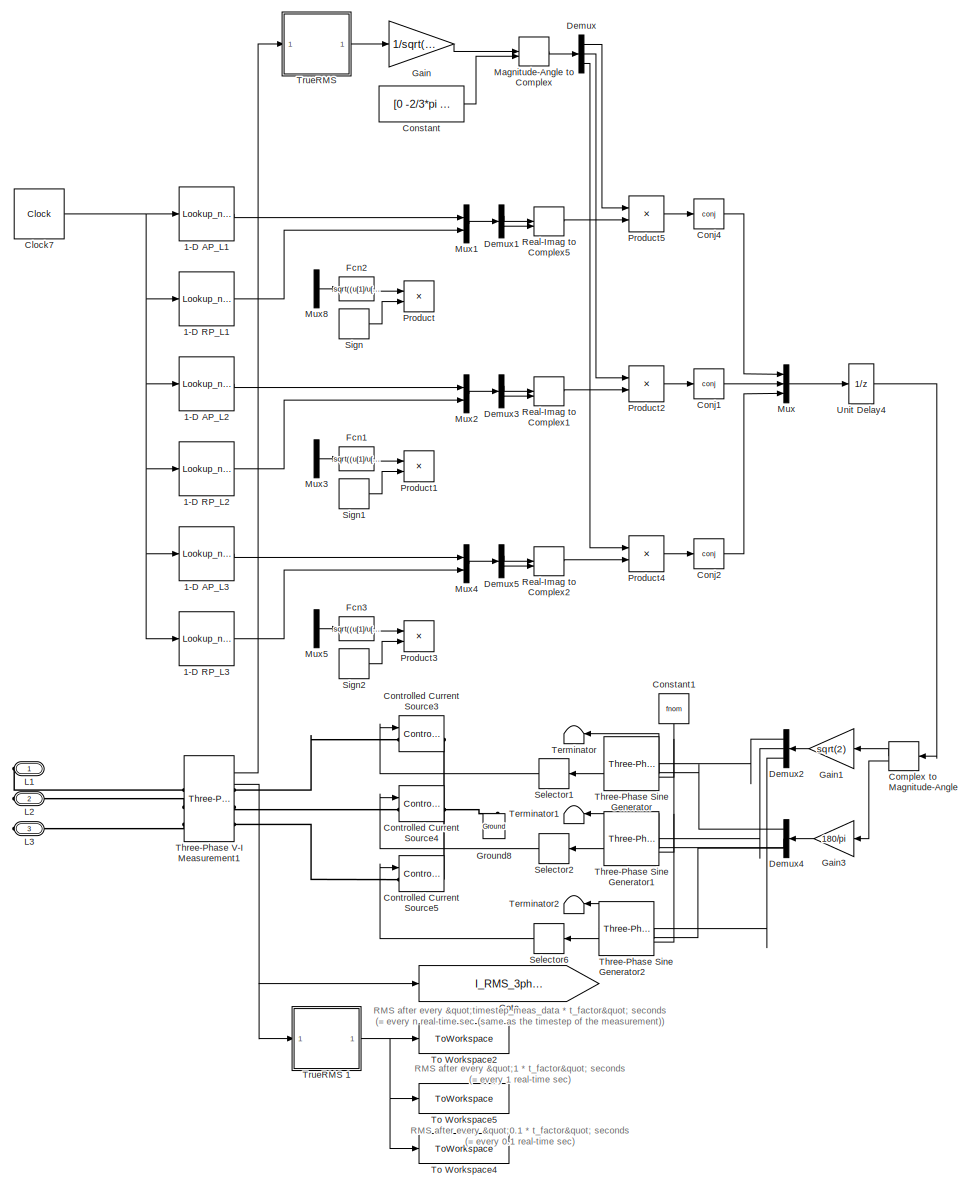
[diagram: SM_Master/Three-phase unsymmetrical Dynamic Load Reactive Power input PV - part 1/1, most of the canvas]
BLOCK [SubSystem] SM_Master/Three-phase unsymmetrical Dynamic Load Reactive Power input PV
  NameLocation = right
BLOCK [Lookup_n-D] SM_Master/Three-phase unsymmetrical Dynamic Load Reactive Power input PV/1-D AP_L1
  BreakpointsForDimension1 = t_factor * [0:timestep_meas_data:(PV_Busbar_Pars.Time(datastop)-PV_Busbar_Pars.Time(datastart))]'
  InputPortMap = u0
  InternalRulePriority = Speed
  InterpMethod = Flat
  NumberOfTableDimensions = 1
  RndMeth = Simplest
  Table = PV_Busbar_Pars.ActivePowerL1(datastart:datastop)
BLOCK [Lookup_n-D] SM_Master/Three-phase unsymmetrical Dynamic Load Reactive Power input PV/1-D AP_L2
  BreakpointsForDimension1 = t_factor * [0:timestep_meas_data:(PV_Busbar_Pars.Time(datastop)-PV_Busbar_Pars.Time(datastart))]'
  InputPortMap = u0
  InternalRulePriority = Speed
  InterpMethod = Flat
  NumberOfTableDimensions = 1
  RndMeth = Simplest
  Table = PV_Busbar_Pars.ActivePowerL2(datastart:datastop)
BLOCK [Lookup_n-D] SM_Master/Three-phase unsymmetrical Dynamic Load Reactive Power input PV/1-D AP_L3
  BreakpointsForDimension1 = t_factor * [0:timestep_meas_data:(PV_Busbar_Pars.Time(datastop)-PV_Busbar_Pars.Time(datastart))]'
  InputPortMap = u0
  InternalRulePriority = Speed
  InterpMethod = Flat
  NumberOfTableDimensions = 1
  RndMeth = Simplest
  Table = PV_Busbar_Pars.ActivePowerL3(datastart:datastop)
BLOCK [Lookup_n-D] SM_Master/Three-phase unsymmetrical Dynamic Load Reactive Power input PV/1-D RP_L1
  BreakpointsForDimension1 = t_factor * [0:timestep_meas_data:(PV_Busbar_Pars.Time(datastop)-PV_Busbar_Pars.Time(datastart))]'
  InputPortMap = u0
  InternalRulePriority = Speed
  InterpMethod = Flat
  NumberOfTableDimensions = 1
  RndMeth = Simplest
  Table = PV_Busbar_Pars.ReactivePowerL1(datastart:datastop)
BLOCK [Lookup_n-D] SM_Master/Three-phase unsymmetrical Dynamic Load Reactive Power input PV/1-D RP_L2
  BreakpointsForDimension1 = t_factor * [0:timestep_meas_data:(PV_Busbar_Pars.Time(datastop)-PV_Busbar_Pars.Time(datastart))]'
  InputPortMap = u0
  InternalRulePriority = Speed
  InterpMethod = Flat
  NumberOfTableDimensions = 1
  RndMeth = Simplest
  Table = PV_Busbar_Pars.ReactivePowerL2(datastart:datastop)
BLOCK [Lookup_n-D] SM_Master/Three-phase unsymmetrical Dynamic Load Reactive Power input PV/1-D RP_L3
  BreakpointsForDimension1 = t_factor * [0:timestep_meas_data:(PV_Busbar_Pars.Time(datastop)-PV_Busbar_Pars.Time(datastart))]'
  InputPortMap = u0
  InternalRulePriority = Speed
  InterpMethod = Flat
  NumberOfTableDimensions = 1
  RndMeth = Simplest
  Table = PV_Busbar_Pars.ReactivePowerL3(datastart:datastop)
BLOCK [Clock] SM_Master/Three-phase unsymmetrical Dynamic Load Reactive Power input PV/Clock7
  DisplayTime = on
BLOCK [ComplexToMagnitudeAngle] SM_Master/Three-phase unsymmetrical Dynamic Load Reactive Power input PV/Complex to Magnitude-Angle
  NameLocation = top
BLOCK [Math] SM_Master/Three-phase unsymmetrical Dynamic Load Reactive Power input PV/Conj1
  Operator = conj
  SignedPower = on
BLOCK [Math] SM_Master/Three-phase unsymmetrical Dynamic Load Reactive Power input PV/Conj2
  Operator = conj
  SignedPower = on
BLOCK [Math] SM_Master/Three-phase unsymmetrical Dynamic Load Reactive Power input PV/Conj4
  Operator = conj
  SignedPower = on
BLOCK [Constant] SM_Master/Three-phase unsymmetrical Dynamic Load Reactive Power input PV/Constant
  Value = [0 -2/3*pi -4/3*pi]
BLOCK [Constant] SM_Master/Three-phase unsymmetrical Dynamic Load Reactive Power input PV/Constant1
  NameLocation = left
  Value = fnom
BLOCK [Reference] SM_Master/Three-phase unsymmetrical Dynamic Load Reactive Power input PV/Controlled Current Source3  REF=spsControlledCurrentSourceLib/Controlled Current Source
  LibrarySourceBlock = sps_lib/Sources/Controlled Current Source
  SourceBlock = spsControlledCurrentSourceLib/Controlled Current Source
  SourceType = Controlled Current Source
BLOCK [Reference] SM_Master/Three-phase unsymmetrical Dynamic Load Reactive Power input PV/Controlled Current Source4  REF=spsControlledCurrentSourceLib/Controlled Current Source
  LibrarySourceBlock = sps_lib/Sources/Controlled Current Source
  SourceBlock = spsControlledCurrentSourceLib/Controlled Current Source
  SourceType = Controlled Current Source
BLOCK [Reference] SM_Master/Three-phase unsymmetrical Dynamic Load Reactive Power input PV/Controlled Current Source5  REF=spsControlledCurrentSourceLib/Controlled Current Source
  LibrarySourceBlock = sps_lib/Sources/Controlled Current Source
  SourceBlock = spsControlledCurrentSourceLib/Controlled Current Source
  SourceType = Controlled Current Source
BLOCK [Demux] SM_Master/Three-phase unsymmetrical Dynamic Load Reactive Power input PV/Demux
  Outputs = 3
BLOCK [Demux] SM_Master/Three-phase unsymmetrical Dynamic Load Reactive Power input PV/Demux1
  DisplayOption = none
  Outputs = 2
BLOCK [Demux] SM_Master/Three-phase unsymmetrical Dynamic Load Reactive Power input PV/Demux2
  NameLocation = top
  Outputs = 3
BLOCK [Demux] SM_Master/Three-phase unsymmetrical Dynamic Load Reactive Power input PV/Demux3
  DisplayOption = none
  Outputs = 2
BLOCK [Demux] SM_Master/Three-phase unsymmetrical Dynamic Load Reactive Power input PV/Demux4
  NameLocation = top
  Outputs = 3
BLOCK [Demux] SM_Master/Three-phase unsymmetrical Dynamic Load Reactive Power input PV/Demux5
  DisplayOption = none
  Outputs = 2
BLOCK [Fcn] SM_Master/Three-phase unsymmetrical Dynamic Load Reactive Power input PV/Fcn1
  Commented = on
  Expr = sqrt((u[1]/u[2])^2-u[1]^2)
BLOCK [Fcn] SM_Master/Three-phase unsymmetrical Dynamic Load Reactive Power input PV/Fcn2
  Commented = on
  Expr = sqrt((u[1]/u[2])^2-u[1]^2)
BLOCK [Fcn] SM_Master/Three-phase unsymmetrical Dynamic Load Reactive Power input PV/Fcn3
  Commented = on
  Expr = sqrt((u[1]/u[2])^2-u[1]^2)
BLOCK [Gain] SM_Master/Three-phase unsymmetrical Dynamic Load Reactive Power input PV/Gain
  Gain = 1/sqrt(3)
BLOCK [Gain] SM_Master/Three-phase unsymmetrical Dynamic Load Reactive Power input PV/Gain1
  Gain = sqrt(2)
  NameLocation = top
BLOCK [Gain] SM_Master/Three-phase unsymmetrical Dynamic Load Reactive Power input PV/Gain3
  Gain = 180/pi
  NameLocation = top
BLOCK [Goto] SM_Master/Three-phase unsymmetrical Dynamic Load Reactive Power input PV/Goto
  Commented = on
  GotoTag = I_RMS_3ph_1sec
  TagVisibility = global
BLOCK [Reference] SM_Master/Three-phase unsymmetrical Dynamic Load Reactive Power input PV/Ground8  REF=spsGroundLib/Ground
  LibrarySourceBlock = sps_lib/Utilities/Ground
  NameLocation = right
  SourceBlock = spsGroundLib/Ground
  SourceType = Ground
BLOCK [PMIOPort] SM_Master/Three-phase unsymmetrical Dynamic Load Reactive Power input PV/L1
  NameLocation = top
  Side = Right
BLOCK [PMIOPort] SM_Master/Three-phase unsymmetrical Dynamic Load Reactive Power input PV/L2
  NameLocation = top
  Port = 2
  Side = Right
BLOCK [PMIOPort] SM_Master/Three-phase unsymmetrical Dynamic Load Reactive Power input PV/L3
  NameLocation = top
  Port = 3
  Side = Right
BLOCK [MagnitudeAngleToComplex] SM_Master/Three-phase unsymmetrical Dynamic Load Reactive Power input PV/Magnitude-Angle to Complex
BLOCK [Mux] SM_Master/Three-phase unsymmetrical Dynamic Load Reactive Power input PV/Mux
  DisplayOption = bar
  Inputs = 3
BLOCK [Mux] SM_Master/Three-phase unsymmetrical Dynamic Load Reactive Power input PV/Mux1
  DisplayOption = bar
  Inputs = 2
BLOCK [Mux] SM_Master/Three-phase unsymmetrical Dynamic Load Reactive Power input PV/Mux2
  DisplayOption = bar
  Inputs = 2
BLOCK [Mux] SM_Master/Three-phase unsymmetrical Dynamic Load Reactive Power input PV/Mux3
  Commented = on
  DisplayOption = bar
  Inputs = 2
BLOCK [Mux] SM_Master/Three-phase unsymmetrical Dynamic Load Reactive Power input PV/Mux4
  DisplayOption = bar
  Inputs = 2
BLOCK [Mux] SM_Master/Three-phase unsymmetrical Dynamic Load Reactive Power input PV/Mux5
  Commented = on
  DisplayOption = bar
  Inputs = 2
BLOCK [Mux] SM_Master/Three-phase unsymmetrical Dynamic Load Reactive Power input PV/Mux8
  Commented = on
  DisplayOption = bar
  Inputs = 2
BLOCK [Product] SM_Master/Three-phase unsymmetrical Dynamic Load Reactive Power input PV/Product
  Commented = on
BLOCK [Product] SM_Master/Three-phase unsymmetrical Dynamic Load Reactive Power input PV/Product1
  Commented = on
BLOCK [Product] SM_Master/Three-phase unsymmetrical Dynamic Load Reactive Power input PV/Product2
  InputSameDT = on
  Inputs = /*
  OutDataTypeStr = Inherit: Same as first input
  SaturateOnIntegerOverflow = on
BLOCK [Product] SM_Master/Three-phase unsymmetrical Dynamic Load Reactive Power input PV/Product3
  Commented = on
BLOCK [Product] SM_Master/Three-phase unsymmetrical Dynamic Load Reactive Power input PV/Product4
  InputSameDT = on
  Inputs = /*
  OutDataTypeStr = Inherit: Same as first input
  SaturateOnIntegerOverflow = on
BLOCK [Product] SM_Master/Three-phase unsymmetrical Dynamic Load Reactive Power input PV/Product5
  InputSameDT = on
  Inputs = /*
  OutDataTypeStr = Inherit: Same as first input
  SaturateOnIntegerOverflow = on
BLOCK [RealImagToComplex] SM_Master/Three-phase unsymmetrical Dynamic Load Reactive Power input PV/Real-Imag to Complex1
BLOCK [RealImagToComplex] SM_Master/Three-phase unsymmetrical Dynamic Load Reactive Power input PV/Real-Imag to Complex2
BLOCK [RealImagToComplex] SM_Master/Three-phase unsymmetrical Dynamic Load Reactive Power input PV/Real-Imag to Complex5
BLOCK [Selector] SM_Master/Three-phase unsymmetrical Dynamic Load Reactive Power input PV/Selector1
  IndexOptions = Index vector (dialog)
  Indices = 1
  InputPortWidth = 3
  NameLocation = top
  OutputSizes = 1
BLOCK [Selector] SM_Master/Three-phase unsymmetrical Dynamic Load Reactive Power input PV/Selector2
  IndexOptions = Index vector (dialog)
  Indices = 1
  InputPortWidth = 3
  NameLocation = top
  OutputSizes = 1
BLOCK [Selector] SM_Master/Three-phase unsymmetrical Dynamic Load Reactive Power input PV/Selector6
  IndexOptions = Index vector (dialog)
  Indices = 1
  InputPortWidth = 3
  NameLocation = top
  OutputSizes = 1
BLOCK [Signum] SM_Master/Three-phase unsymmetrical Dynamic Load Reactive Power input PV/Sign
  Commented = on
BLOCK [Signum] SM_Master/Three-phase unsymmetrical Dynamic Load Reactive Power input PV/Sign1
  Commented = on
BLOCK [Signum] SM_Master/Three-phase unsymmetrical Dynamic Load Reactive Power input PV/Sign2
  Commented = on
BLOCK [Terminator] SM_Master/Three-phase unsymmetrical Dynamic Load Reactive Power input PV/Terminator
BLOCK [Terminator] SM_Master/Three-phase unsymmetrical Dynamic Load Reactive Power input PV/Terminator1
BLOCK [Terminator] SM_Master/Three-phase unsymmetrical Dynamic Load Reactive Power input PV/Terminator2
BLOCK [Reference] SM_Master/Three-phase unsymmetrical Dynamic Load Reactive Power input PV/Three-Phase Sine Generator  REF=spsThreePhaseSineGeneratorLib/Three-Phase
Sine Generator
  LibrarySourceBlock = sps_lib/Sources/Signal Generator Sources/Three-Phase\nSine Generator
  NameLocation = top
  SourceBlock = spsThreePhaseSineGeneratorLib/Three-Phase\nSine Generator
  SourceType = Three-phase Sine Generator
BLOCK [Reference] SM_Master/Three-phase unsymmetrical Dynamic Load Reactive Power input PV/Three-Phase Sine Generator1  REF=spsThreePhaseSineGeneratorLib/Three-Phase
Sine Generator
  LibrarySourceBlock = sps_lib/Sources/Signal Generator Sources/Three-Phase\nSine Generator
  NameLocation = top
  SourceBlock = spsThreePhaseSineGeneratorLib/Three-Phase\nSine Generator
  SourceType = Three-phase Sine Generator
BLOCK [Reference] SM_Master/Three-phase unsymmetrical Dynamic Load Reactive Power input PV/Three-Phase Sine Generator2  REF=spsThreePhaseSineGeneratorLib/Three-Phase
Sine Generator
  LibrarySourceBlock = sps_lib/Sources/Signal Generator Sources/Three-Phase\nSine Generator
  NameLocation = top
  SourceBlock = spsThreePhaseSineGeneratorLib/Three-Phase\nSine Generator
  SourceType = Three-phase Sine Generator
BLOCK [Reference] SM_Master/Three-phase unsymmetrical Dynamic Load Reactive Power input PV/Three-Phase V-I Measurement1  REF=spsThreePhaseVIMeasurementLib/Three-Phase
V-I Measurement
  LibrarySourceBlock = sps_lib/Sensors and Measurements/Three-Phase\nV-I Measurement
  SourceBlock = spsThreePhaseVIMeasurementLib/Three-Phase\nV-I Measurement
  SourceType = Three-Phase VI Measurement
BLOCK [ToWorkspace] SM_Master/Three-phase unsymmetrical Dynamic Load Reactive Power input PV/To Workspace2
  Commented = on
  FixptAsFi = on
  MaxDataPoints = inf
  SampleTime = timestep_meas_data * t_factor
  VariableName = I_RMS_3ph_nsec
BLOCK [ToWorkspace] SM_Master/Three-phase unsymmetrical Dynamic Load Reactive Power input PV/To Workspace4
  Commented = on
  FixptAsFi = on
  MaxDataPoints = inf
  SampleTime = 0.1 * t_factor
  VariableName = I_RMS_3ph_0_1sec
BLOCK [ToWorkspace] SM_Master/Three-phase unsymmetrical Dynamic Load Reactive Power input PV/To Workspace5
  Commented = on
  FixptAsFi = on
  MaxDataPoints = inf
  SampleTime = 1 * t_factor
  VariableName = I_RMS_3ph_1sec
BLOCK [SubSystem] SM_Master/Three-phase unsymmetrical Dynamic Load Reactive Power input PV/TrueRMS 
  AncestorBlock = powerlib_meascontrol/Measurements/RMS/TrueRMS
  ShowPortLabels = none
BLOCK [Inport] SM_Master/Three-phase unsymmetrical Dynamic Load Reactive Power input PV/TrueRMS /In
BLOCK [Reference] SM_Master/Three-phase unsymmetrical Dynamic Load Reactive Power input PV/TrueRMS /Mean value  REF=spsMeanLib/Mean
  LibrarySourceBlock = sps_lib/Sensors and Measurements/Mean
  SourceBlock = spsMeanLib/Mean
  SourceType = Mean
BLOCK [Product] SM_Master/Three-phase unsymmetrical Dynamic Load Reactive Power input PV/TrueRMS /Product
  InputSameDT = on
  OutDataTypeStr = Inherit: Same as first input
  SaturateOnIntegerOverflow = on
BLOCK [Outport] SM_Master/Three-phase unsymmetrical Dynamic Load Reactive Power input PV/TrueRMS /RMS
  VectorParamsAs1DForOutWhenUnconnected = off
BLOCK [Saturate] SM_Master/Three-phase unsymmetrical Dynamic Load Reactive Power input PV/TrueRMS /Saturation to avoid negative sqrt
  LowerLimit = 0
  UpperLimit = Inf
BLOCK [Sqrt] SM_Master/Three-phase unsymmetrical Dynamic Load Reactive Power input PV/TrueRMS /Sqrt
  AlgorithmType = Newton-Raphson
BLOCK [SubSystem] SM_Master/Three-phase unsymmetrical Dynamic Load Reactive Power input PV/TrueRMS 1
  AncestorBlock = powerlib_meascontrol/Measurements/RMS/TrueRMS
  ShowPortLabels = none
BLOCK [Inport] SM_Master/Three-phase unsymmetrical Dynamic Load Reactive Power input PV/TrueRMS 1/In
BLOCK [Reference] SM_Master/Three-phase unsymmetrical Dynamic Load Reactive Power input PV/TrueRMS 1/Mean value  REF=spsMeanLib/Mean
  LibrarySourceBlock = sps_lib/Sensors and Measurements/Mean
  SourceBlock = spsMeanLib/Mean
  SourceType = Mean
BLOCK [Product] SM_Master/Three-phase unsymmetrical Dynamic Load Reactive Power input PV/TrueRMS 1/Product
  InputSameDT = on
  OutDataTypeStr = Inherit: Same as first input
  SaturateOnIntegerOverflow = on
BLOCK [Outport] SM_Master/Three-phase unsymmetrical Dynamic Load Reactive Power input PV/TrueRMS 1/RMS
  VectorParamsAs1DForOutWhenUnconnected = off
BLOCK [Saturate] SM_Master/Three-phase unsymmetrical Dynamic Load Reactive Power input PV/TrueRMS 1/Saturation to avoid negative sqrt
  LowerLimit = 0
  UpperLimit = Inf
BLOCK [Sqrt] SM_Master/Three-phase unsymmetrical Dynamic Load Reactive Power input PV/TrueRMS 1/Sqrt
  AlgorithmType = Newton-Raphson
BLOCK [UnitDelay] SM_Master/Three-phase unsymmetrical Dynamic Load Reactive Power input PV/Unit Delay4
  HasFrameUpgradeWarning = on
  InitialCondition = 0*exp(-j*0*pi/180)
  NameLocation = top
  SampleTime = Ts
BLOCK [SubSystem] SM_Master/Three-phase unsymmetrical Dynamic Load Reactive Power input V2G
  NameLocation = right
BLOCK [Lookup_n-D] SM_Master/Three-phase unsymmetrical Dynamic Load Reactive Power input V2G/1-D AP_L1
  BreakpointsForDimension1 = t_factor * [0:timestep_meas_data:(V2G_Busbar_Pars.Time(datastop)-V2G_Busbar_Pars.Time(datastart))]'
  InputPortMap = u0
  InternalRulePriority = Speed
  InterpMethod = Flat
  NumberOfTableDimensions = 1
  RndMeth = Simplest
  Table = V2G_Busbar_Pars.ActivePowerL1(datastart:datastop)
BLOCK [Lookup_n-D] SM_Master/Three-phase unsymmetrical Dynamic Load Reactive Power input V2G/1-D AP_L2
  BreakpointsForDimension1 = t_factor * [0:timestep_meas_data:(V2G_Busbar_Pars.Time(datastop)-V2G_Busbar_Pars.Time(datastart))]'
  InputPortMap = u0
  InternalRulePriority = Speed
  InterpMethod = Flat
  NumberOfTableDimensions = 1
  RndMeth = Simplest
  Table = V2G_Busbar_Pars.ActivePowerL2(datastart:datastop)
BLOCK [Lookup_n-D] SM_Master/Three-phase unsymmetrical Dynamic Load Reactive Power input V2G/1-D AP_L3
  BreakpointsForDimension1 = t_factor * [0:timestep_meas_data:(V2G_Busbar_Pars.Time(datastop)-V2G_Busbar_Pars.Time(datastart))]'
  InputPortMap = u0
  InternalRulePriority = Speed
  InterpMethod = Flat
  NumberOfTableDimensions = 1
  RndMeth = Simplest
  Table = V2G_Busbar_Pars.ActivePowerL3(datastart:datastop)
BLOCK [Lookup_n-D] SM_Master/Three-phase unsymmetrical Dynamic Load Reactive Power input V2G/1-D RP_L1
  BreakpointsForDimension1 = t_factor * [0:timestep_meas_data:(V2G_Busbar_Pars.Time(datastop)-V2G_Busbar_Pars.Time(datastart))]'
  InputPortMap = u0
  InternalRulePriority = Speed
  InterpMethod = Flat
  NumberOfTableDimensions = 1
  RndMeth = Simplest
  Table = V2G_Busbar_Pars.ReactivePowerL1(datastart:datastop)
BLOCK [Lookup_n-D] SM_Master/Three-phase unsymmetrical Dynamic Load Reactive Power input V2G/1-D RP_L2
  BreakpointsForDimension1 = t_factor * [0:timestep_meas_data:(V2G_Busbar_Pars.Time(datastop)-V2G_Busbar_Pars.Time(datastart))]'
  InputPortMap = u0
  InternalRulePriority = Speed
  InterpMethod = Flat
  NumberOfTableDimensions = 1
  RndMeth = Simplest
  Table = V2G_Busbar_Pars.ReactivePowerL2(datastart:datastop)
BLOCK [Lookup_n-D] SM_Master/Three-phase unsymmetrical Dynamic Load Reactive Power input V2G/1-D RP_L3
  BreakpointsForDimension1 = t_factor * [0:timestep_meas_data:(V2G_Busbar_Pars.Time(datastop)-V2G_Busbar_Pars.Time(datastart))]'
  InputPortMap = u0
  InternalRulePriority = Speed
  InterpMethod = Flat
  NumberOfTableDimensions = 1
  RndMeth = Simplest
  Table = V2G_Busbar_Pars.ReactivePowerL3(datastart:datastop)
BLOCK [Clock] SM_Master/Three-phase unsymmetrical Dynamic Load Reactive Power input V2G/Clock7
  DisplayTime = on
BLOCK [ComplexToMagnitudeAngle] SM_Master/Three-phase unsymmetrical Dynamic Load Reactive Power input V2G/Complex to Magnitude-Angle
  NameLocation = top
BLOCK [Math] SM_Master/Three-phase unsymmetrical Dynamic Load Reactive Power input V2G/Conj1
  Operator = conj
  SignedPower = on
BLOCK [Math] SM_Master/Three-phase unsymmetrical Dynamic Load Reactive Power input V2G/Conj2
  Operator = conj
  SignedPower = on
BLOCK [Math] SM_Master/Three-phase unsymmetrical Dynamic Load Reactive Power input V2G/Conj4
  Operator = conj
  SignedPower = on
BLOCK [Constant] SM_Master/Three-phase unsymmetrical Dynamic Load Reactive Power input V2G/Constant
  Value = [0 -2/3*pi -4/3*pi]
BLOCK [Constant] SM_Master/Three-phase unsymmetrical Dynamic Load Reactive Power input V2G/Constant1
  NameLocation = left
  Value = fnom
BLOCK [Reference] SM_Master/Three-phase unsymmetrical Dynamic Load Reactive Power input V2G/Controlled Current Source3  REF=spsControlledCurrentSourceLib/Controlled Current Source
  LibrarySourceBlock = sps_lib/Sources/Controlled Current Source
  SourceBlock = spsControlledCurrentSourceLib/Controlled Current Source
  SourceType = Controlled Current Source
BLOCK [Reference] SM_Master/Three-phase unsymmetrical Dynamic Load Reactive Power input V2G/Controlled Current Source4  REF=spsControlledCurrentSourceLib/Controlled Current Source
  LibrarySourceBlock = sps_lib/Sources/Controlled Current Source
  SourceBlock = spsControlledCurrentSourceLib/Controlled Current Source
  SourceType = Controlled Current Source
BLOCK [Reference] SM_Master/Three-phase unsymmetrical Dynamic Load Reactive Power input V2G/Controlled Current Source5  REF=spsControlledCurrentSourceLib/Controlled Current Source
  LibrarySourceBlock = sps_lib/Sources/Controlled Current Source
  SourceBlock = spsControlledCurrentSourceLib/Controlled Current Source
  SourceType = Controlled Current Source
BLOCK [Demux] SM_Master/Three-phase unsymmetrical Dynamic Load Reactive Power input V2G/Demux
  Outputs = 3
BLOCK [Demux] SM_Master/Three-phase unsymmetrical Dynamic Load Reactive Power input V2G/Demux1
  DisplayOption = none
  Outputs = 2
BLOCK [Demux] SM_Master/Three-phase unsymmetrical Dynamic Load Reactive Power input V2G/Demux2
  NameLocation = top
  Outputs = 3
BLOCK [Demux] SM_Master/Three-phase unsymmetrical Dynamic Load Reactive Power input V2G/Demux3
  DisplayOption = none
  Outputs = 2
BLOCK [Demux] SM_Master/Three-phase unsymmetrical Dynamic Load Reactive Power input V2G/Demux4
  NameLocation = top
  Outputs = 3
BLOCK [Demux] SM_Master/Three-phase unsymmetrical Dynamic Load Reactive Power input V2G/Demux5
  DisplayOption = none
  Outputs = 2
BLOCK [Fcn] SM_Master/Three-phase unsymmetrical Dynamic Load Reactive Power input V2G/Fcn1
  Commented = on
  Expr = sqrt((u[1]/u[2])^2-u[1]^2)
BLOCK [Fcn] SM_Master/Three-phase unsymmetrical Dynamic Load Reactive Power input V2G/Fcn2
  Commented = on
  Expr = sqrt((u[1]/u[2])^2-u[1]^2)
BLOCK [Fcn] SM_Master/Three-phase unsymmetrical Dynamic Load Reactive Power input V2G/Fcn3
  Commented = on
  Expr = sqrt((u[1]/u[2])^2-u[1]^2)
BLOCK [Gain] SM_Master/Three-phase unsymmetrical Dynamic Load Reactive Power input V2G/Gain
  Gain = 1/sqrt(3)
BLOCK [Gain] SM_Master/Three-phase unsymmetrical Dynamic Load Reactive Power input V2G/Gain1
  Gain = sqrt(2)
  NameLocation = top
BLOCK [Gain] SM_Master/Three-phase unsymmetrical Dynamic Load Reactive Power input V2G/Gain3
  Gain = 180/pi
  NameLocation = top
BLOCK [Goto] SM_Master/Three-phase unsymmetrical Dynamic Load Reactive Power input V2G/Goto
  Commented = on
  GotoTag = I_RMS_3ph_1sec
  TagVisibility = global
BLOCK [Reference] SM_Master/Three-phase unsymmetrical Dynamic Load Reactive Power input V2G/Ground8  REF=spsGroundLib/Ground
  LibrarySourceBlock = sps_lib/Utilities/Ground
  NameLocation = right
  SourceBlock = spsGroundLib/Ground
  SourceType = Ground
BLOCK [PMIOPort] SM_Master/Three-phase unsymmetrical Dynamic Load Reactive Power input V2G/L1
  NameLocation = top
  Side = Right
BLOCK [PMIOPort] SM_Master/Three-phase unsymmetrical Dynamic Load Reactive Power input V2G/L2
  NameLocation = top
  Port = 2
  Side = Right
BLOCK [PMIOPort] SM_Master/Three-phase unsymmetrical Dynamic Load Reactive Power input V2G/L3
  NameLocation = top
  Port = 3
  Side = Right
BLOCK [MagnitudeAngleToComplex] SM_Master/Three-phase unsymmetrical Dynamic Load Reactive Power input V2G/Magnitude-Angle to Complex
BLOCK [Mux] SM_Master/Three-phase unsymmetrical Dynamic Load Reactive Power input V2G/Mux
  DisplayOption = bar
  Inputs = 3
BLOCK [Mux] SM_Master/Three-phase unsymmetrical Dynamic Load Reactive Power input V2G/Mux1
  DisplayOption = bar
  Inputs = 2
BLOCK [Mux] SM_Master/Three-phase unsymmetrical Dynamic Load Reactive Power input V2G/Mux2
  DisplayOption = bar
  Inputs = 2
BLOCK [Mux] SM_Master/Three-phase unsymmetrical Dynamic Load Reactive Power input V2G/Mux3
  Commented = on
  DisplayOption = bar
  Inputs = 2
BLOCK [Mux] SM_Master/Three-phase unsymmetrical Dynamic Load Reactive Power input V2G/Mux4
  DisplayOption = bar
  Inputs = 2
BLOCK [Mux] SM_Master/Three-phase unsymmetrical Dynamic Load Reactive Power input V2G/Mux5
  Commented = on
  DisplayOption = bar
  Inputs = 2
BLOCK [Mux] SM_Master/Three-phase unsymmetrical Dynamic Load Reactive Power input V2G/Mux8
  Commented = on
  DisplayOption = bar
  Inputs = 2
BLOCK [Product] SM_Master/Three-phase unsymmetrical Dynamic Load Reactive Power input V2G/Product
  Commented = on
BLOCK [Product] SM_Master/Three-phase unsymmetrical Dynamic Load Reactive Power input V2G/Product1
  Commented = on
BLOCK [Product] SM_Master/Three-phase unsymmetrical Dynamic Load Reactive Power input V2G/Product2
  InputSameDT = on
  Inputs = /*
  OutDataTypeStr = Inherit: Same as first input
  SaturateOnIntegerOverflow = on
BLOCK [Product] SM_Master/Three-phase unsymmetrical Dynamic Load Reactive Power input V2G/Product3
  Commented = on
BLOCK [Product] SM_Master/Three-phase unsymmetrical Dynamic Load Reactive Power input V2G/Product4
  InputSameDT = on
  Inputs = /*
  OutDataTypeStr = Inherit: Same as first input
  SaturateOnIntegerOverflow = on
BLOCK [Product] SM_Master/Three-phase unsymmetrical Dynamic Load Reactive Power input V2G/Product5
  InputSameDT = on
  Inputs = /*
  OutDataTypeStr = Inherit: Same as first input
  SaturateOnIntegerOverflow = on
BLOCK [RealImagToComplex] SM_Master/Three-phase unsymmetrical Dynamic Load Reactive Power input V2G/Real-Imag to Complex1
BLOCK [RealImagToComplex] SM_Master/Three-phase unsymmetrical Dynamic Load Reactive Power input V2G/Real-Imag to Complex2
BLOCK [RealImagToComplex] SM_Master/Three-phase unsymmetrical Dynamic Load Reactive Power input V2G/Real-Imag to Complex5
BLOCK [Selector] SM_Master/Three-phase unsymmetrical Dynamic Load Reactive Power input V2G/Selector1
  IndexOptions = Index vector (dialog)
  Indices = 1
  InputPortWidth = 3
  NameLocation = top
  OutputSizes = 1
BLOCK [Selector] SM_Master/Three-phase unsymmetrical Dynamic Load Reactive Power input V2G/Selector2
  IndexOptions = Index vector (dialog)
  Indices = 1
  InputPortWidth = 3
  NameLocation = top
  OutputSizes = 1
BLOCK [Selector] SM_Master/Three-phase unsymmetrical Dynamic Load Reactive Power input V2G/Selector6
  IndexOptions = Index vector (dialog)
  Indices = 1
  InputPortWidth = 3
  NameLocation = top
  OutputSizes = 1
BLOCK [Signum] SM_Master/Three-phase unsymmetrical Dynamic Load Reactive Power input V2G/Sign
  Commented = on
BLOCK [Signum] SM_Master/Three-phase unsymmetrical Dynamic Load Reactive Power input V2G/Sign1
  Commented = on
BLOCK [Signum] SM_Master/Three-phase unsymmetrical Dynamic Load Reactive Power input V2G/Sign2
  Commented = on
BLOCK [Terminator] SM_Master/Three-phase unsymmetrical Dynamic Load Reactive Power input V2G/Terminator
BLOCK [Terminator] SM_Master/Three-phase unsymmetrical Dynamic Load Reactive Power input V2G/Terminator1
BLOCK [Terminator] SM_Master/Three-phase unsymmetrical Dynamic Load Reactive Power input V2G/Terminator2
BLOCK [Reference] SM_Master/Three-phase unsymmetrical Dynamic Load Reactive Power input V2G/Three-Phase Sine Generator  REF=spsThreePhaseSineGeneratorLib/Three-Phase
Sine Generator
  LibrarySourceBlock = sps_lib/Sources/Signal Generator Sources/Three-Phase\nSine Generator
  NameLocation = top
  SourceBlock = spsThreePhaseSineGeneratorLib/Three-Phase\nSine Generator
  SourceType = Three-phase Sine Generator
BLOCK [Reference] SM_Master/Three-phase unsymmetrical Dynamic Load Reactive Power input V2G/Three-Phase Sine Generator1  REF=spsThreePhaseSineGeneratorLib/Three-Phase
Sine Generator
  LibrarySourceBlock = sps_lib/Sources/Signal Generator Sources/Three-Phase\nSine Generator
  NameLocation = top
  SourceBlock = spsThreePhaseSineGeneratorLib/Three-Phase\nSine Generator
  SourceType = Three-phase Sine Generator
BLOCK [Reference] SM_Master/Three-phase unsymmetrical Dynamic Load Reactive Power input V2G/Three-Phase Sine Generator2  REF=spsThreePhaseSineGeneratorLib/Three-Phase
Sine Generator
  LibrarySourceBlock = sps_lib/Sources/Signal Generator Sources/Three-Phase\nSine Generator
  NameLocation = top
  SourceBlock = spsThreePhaseSineGeneratorLib/Three-Phase\nSine Generator
  SourceType = Three-phase Sine Generator
BLOCK [Reference] SM_Master/Three-phase unsymmetrical Dynamic Load Reactive Power input V2G/Three-Phase V-I Measurement1  REF=spsThreePhaseVIMeasurementLib/Three-Phase
V-I Measurement
  LibrarySourceBlock = sps_lib/Sensors and Measurements/Three-Phase\nV-I Measurement
  SourceBlock = spsThreePhaseVIMeasurementLib/Three-Phase\nV-I Measurement
  SourceType = Three-Phase VI Measurement
BLOCK [ToWorkspace] SM_Master/Three-phase unsymmetrical Dynamic Load Reactive Power input V2G/To Workspace2
  Commented = on
  FixptAsFi = on
  MaxDataPoints = inf
  SampleTime = timestep_meas_data * t_factor
  VariableName = I_RMS_3ph_nsec
BLOCK [ToWorkspace] SM_Master/Three-phase unsymmetrical Dynamic Load Reactive Power input V2G/To Workspace4
  Commented = on
  FixptAsFi = on
  MaxDataPoints = inf
  SampleTime = 0.1 * t_factor
  VariableName = I_RMS_3ph_0_1sec
BLOCK [ToWorkspace] SM_Master/Three-phase unsymmetrical Dynamic Load Reactive Power input V2G/To Workspace5
  Commented = on
  FixptAsFi = on
  MaxDataPoints = inf
  SampleTime = 1 * t_factor
  VariableName = I_RMS_3ph_1sec
BLOCK [SubSystem] SM_Master/Three-phase unsymmetrical Dynamic Load Reactive Power input V2G/TrueRMS 
  AncestorBlock = powerlib_meascontrol/Measurements/RMS/TrueRMS
  ShowPortLabels = none
BLOCK [Inport] SM_Master/Three-phase unsymmetrical Dynamic Load Reactive Power input V2G/TrueRMS /In
BLOCK [Reference] SM_Master/Three-phase unsymmetrical Dynamic Load Reactive Power input V2G/TrueRMS /Mean value  REF=spsMeanLib/Mean
  LibrarySourceBlock = sps_lib/Sensors and Measurements/Mean
  SourceBlock = spsMeanLib/Mean
  SourceType = Mean
BLOCK [Product] SM_Master/Three-phase unsymmetrical Dynamic Load Reactive Power input V2G/TrueRMS /Product
  InputSameDT = on
  OutDataTypeStr = Inherit: Same as first input
  SaturateOnIntegerOverflow = on
BLOCK [Outport] SM_Master/Three-phase unsymmetrical Dynamic Load Reactive Power input V2G/TrueRMS /RMS
  VectorParamsAs1DForOutWhenUnconnected = off
BLOCK [Saturate] SM_Master/Three-phase unsymmetrical Dynamic Load Reactive Power input V2G/TrueRMS /Saturation to avoid negative sqrt
  LowerLimit = 0
  UpperLimit = Inf
BLOCK [Sqrt] SM_Master/Three-phase unsymmetrical Dynamic Load Reactive Power input V2G/TrueRMS /Sqrt
  AlgorithmType = Newton-Raphson
BLOCK [SubSystem] SM_Master/Three-phase unsymmetrical Dynamic Load Reactive Power input V2G/TrueRMS 1
  AncestorBlock = powerlib_meascontrol/Measurements/RMS/TrueRMS
  ShowPortLabels = none
BLOCK [Inport] SM_Master/Three-phase unsymmetrical Dynamic Load Reactive Power input V2G/TrueRMS 1/In
BLOCK [Reference] SM_Master/Three-phase unsymmetrical Dynamic Load Reactive Power input V2G/TrueRMS 1/Mean value  REF=spsMeanLib/Mean
  LibrarySourceBlock = sps_lib/Sensors and Measurements/Mean
  SourceBlock = spsMeanLib/Mean
  SourceType = Mean
BLOCK [Product] SM_Master/Three-phase unsymmetrical Dynamic Load Reactive Power input V2G/TrueRMS 1/Product
  InputSameDT = on
  OutDataTypeStr = Inherit: Same as first input
  SaturateOnIntegerOverflow = on
BLOCK [Outport] SM_Master/Three-phase unsymmetrical Dynamic Load Reactive Power input V2G/TrueRMS 1/RMS
  VectorParamsAs1DForOutWhenUnconnected = off
BLOCK [Saturate] SM_Master/Three-phase unsymmetrical Dynamic Load Reactive Power input V2G/TrueRMS 1/Saturation to avoid negative sqrt
  LowerLimit = 0
  UpperLimit = Inf
BLOCK [Sqrt] SM_Master/Three-phase unsymmetrical Dynamic Load Reactive Power input V2G/TrueRMS 1/Sqrt
  AlgorithmType = Newton-Raphson
BLOCK [UnitDelay] SM_Master/Three-phase unsymmetrical Dynamic Load Reactive Power input V2G/Unit Delay4
  HasFrameUpgradeWarning = on
  InitialCondition = 0*exp(-j*0*pi/180)
  NameLocation = top
  SampleTime = Ts
BLOCK [SubSystem] SM_Master/TrueRMS 1
  AncestorBlock = powerlib_meascontrol/Measurements/RMS/TrueRMS
  ShowPortLabels = none
BLOCK [Inport] SM_Master/TrueRMS 1/In
BLOCK [Reference] SM_Master/TrueRMS 1/Mean value  REF=spsMeanLib/Mean
  LibrarySourceBlock = sps_lib/Sensors and Measurements/Mean
  SourceBlock = spsMeanLib/Mean
  SourceType = Mean
BLOCK [Product] SM_Master/TrueRMS 1/Product
  InputSameDT = on
  OutDataTypeStr = Inherit: Same as first input
  SaturateOnIntegerOverflow = on
BLOCK [Outport] SM_Master/TrueRMS 1/RMS
  VectorParamsAs1DForOutWhenUnconnected = off
BLOCK [Saturate] SM_Master/TrueRMS 1/Saturation to avoid negative sqrt
  LowerLimit = 0
  UpperLimit = Inf
BLOCK [Sqrt] SM_Master/TrueRMS 1/Sqrt
  AlgorithmType = Newton-Raphson
BLOCK [Reference] powergui  REF=sps_lib/powergui
  LibrarySourceBlock = sps_lib/powergui
  Priority = 2
  SourceBlock = sps_lib/powergui
  SourceType = PSB option menu block
ANNOTATION SM_Master: '117-2_Cable1_phaseAB_Voltage' '117-2_Cable1_phaseBC_Voltage' '117-2_Cable1_phaseCA_Voltage'
ANNOTATION SM_Master: '117-2_Solar_phaseAB_Voltage' '117-2_Solar_phaseBC_Voltage' '117-2_Solar_phaseCA_Voltage'
ANNOTATION SM_Master: '117-2_Solar_phaseA_Current' '117-2_Solar_phaseB_Current' '117-2_Solar_phaseC_Current'
ANNOTATION SM_Master: '319-2_Cable2_phaseAB_Voltage' '319-2_Cable2_phaseBC_Voltage' '319-2_Cable2_phaseCA_Voltage'
ANNOTATION SM_Master: '319-2_Cable2_phaseA_Voltage' '319-2_Cable2_phaseB_Voltage' '319-2_Cable2_phaseC_Voltage'
ANNOTATION SM_Master: '319-2_Dumpload_phaseAB_Voltage' '319-2_Dumpload_phaseBC_Voltage' '319-2_Dumpload_phaseCA_Voltage'
ANNOTATION SM_Master: '319-2_Dumpload_phaseA_Current' '319-2_Dumpload_phaseB_Current' '319-2_Dumpload_phaseC_Current'
ANNOTATION SM_Master: '319-3_A1 to 319-2_phaseAB_Voltage' '319-3_A1 to 319-2_phaseBC_Voltage' '319-3_A1 to 319-2_phaseCA_Voltage'
ANNOTATION SM_Master: '319-3_A2 to 319-2_phaseAB_Voltage' 319-3_A2 to 319-2_phaseBC_Voltage'' '319-3_A2 to 319-2_phaseCA_Voltage'
ANNOTATION SM_Master: '319-3_B2 to 715-2_phaseAB_Voltage' '319-3_B2 to 715-2_phaseBC_Voltage' '319-3_B2 to 715-2_phaseCA_Voltage'
ANNOTATION SM_Master: '319-3_B2 to 715-2_phaseA_Current' '319-3_B2 to 715-2_phaseB_Current' '319-3_B2 to 715-2_phaseC_Current'
ANNOTATION SM_Master: '319-3_C2 to 117-2_phaseAB_Voltage' '319-3_C2 to 117-2_phaseBC_Voltage' '319-3_C2 to 117-2_phaseCA_Voltage'
ANNOTATION SM_Master: 144:146
ANNOTATION SM_Master: 148:150
ANNOTATION SM_Master: 167:169
ANNOTATION SM_Master: 190:192
ANNOTATION SM_Master: 213:215
ANNOTATION SM_Master: 259:261
ANNOTATION SM_Master: 29:31
ANNOTATION SM_Master: 305:307
ANNOTATION SM_Master: 309:311
ANNOTATION SM_Master: 33:35
ANNOTATION SM_Master: 98:100
ANNOTATION SM_Master: DTU SYSLAB Medium Line Topology
ANNOTATION SM_Master: For comparison purposes use: 167:169 instead (same busbar)
ANNOTATION SM_Master: RT-Signals
ANNOTATION SM_Master: Topology
ANNOTATION SM_Master: || || || || || ||
ANNOTATION SM_Master/Three-phase unsymmetrical Dynamic Load Reactive Power input Dump load: RMS after every "1 * t_factor" seconds (= every 1 real-time sec)
ANNOTATION SM_Master/Three-phase unsymmetrical Dynamic Load Reactive Power input Dump load: RMS after every "timestep_meas_data * t_factor" seconds (= every n real-time sec (same as the timestep of the measurement))
ANNOTATION SM_Master/Three-phase unsymmetrical Dynamic Load Reactive Power input Dump load: RMS after every "0.1 * t_factor" seconds (= every 0.1 real-time sec)
ANNOTATION SM_Master/Three-phase unsymmetrical Dynamic Load Reactive Power input PV: RMS after every "1 * t_factor" seconds (= every 1 real-time sec)
ANNOTATION SM_Master/Three-phase unsymmetrical Dynamic Load Reactive Power input PV: RMS after every "timestep_meas_data * t_factor" seconds (= every n real-time sec (same as the timestep of the measurement))
ANNOTATION SM_Master/Three-phase unsymmetrical Dynamic Load Reactive Power input PV: RMS after every "0.1 * t_factor" seconds (= every 0.1 real-time sec)
ANNOTATION SM_Master/Three-phase unsymmetrical Dynamic Load Reactive Power input V2G: RMS after every "1 * t_factor" seconds (= every 1 real-time sec)
ANNOTATION SM_Master/Three-phase unsymmetrical Dynamic Load Reactive Power input V2G: RMS after every "timestep_meas_data * t_factor" seconds (= every n real-time sec (same as the timestep of the measurement))
ANNOTATION SM_Master/Three-phase unsymmetrical Dynamic Load Reactive Power input V2G: RMS after every "0.1 * t_factor" seconds (= every 0.1 real-time sec)
LINE SM_Master/From10:1 -> SM_Master/Mux3:10
LINE SM_Master/From11:1 -> SM_Master/Mux3:13
LINE SM_Master/From12:1 -> SM_Master/Mux3:8
LINE SM_Master/From14:1 -> SM_Master/Mux3:6
LINE SM_Master/From19:1 -> SM_Master/Mux3:1
LINE SM_Master/From1:1 -> SM_Master/Mux3:9
LINE SM_Master/From20:1 -> SM_Master/Mux3:4
LINE SM_Master/From2:1 -> SM_Master/Mux3:5
LINE SM_Master/From3:1 -> SM_Master/Mux3:7
LINE SM_Master/From4:1 -> SM_Master/Mux3:12
LINE SM_Master/From5:1 -> SM_Master/Mux3:11
LINE SM_Master/From6:1 -> SM_Master/Mux3:14
LINE SM_Master/From7:1 -> SM_Master/Mux3:3
LINE SM_Master/From:1 -> SM_Master/Mux3:2
LINE SM_Master/Mux2:1 -> SM_Master/Terminator2:1
LINE SM_Master/Mux3:1 -> SM_Master/TrueRMS 1:1
LINE SM_Master/OpMonitor:1 -> SM_Master/Mux2:2
LINE SM_Master/OpWriteFile:1 -> SM_Master/Terminator:1
LINE SM_Master/OpWriteFile:2 -> SM_Master/Terminator1:1
NET SM_Master/Three-phase unsymmetrical Dynamic Load Reactive Power input Dump load/1-D AP_L1:1 -> SM_Master/Three-phase unsymmetrical Dynamic Load Reactive Power input Dump load/Display4:1, SM_Master/Three-phase unsymmetrical Dynamic Load Reactive Power input Dump load/Mux1:1
LINE SM_Master/Three-phase unsymmetrical Dynamic Load Reactive Power input Dump load/1-D AP_L2:1 -> SM_Master/Three-phase unsymmetrical Dynamic Load Reactive Power input Dump load/Mux2:1
LINE SM_Master/Three-phase unsymmetrical Dynamic Load Reactive Power input Dump load/1-D AP_L3:1 -> SM_Master/Three-phase unsymmetrical Dynamic Load Reactive Power input Dump load/Mux4:1
LINE SM_Master/Three-phase unsymmetrical Dynamic Load Reactive Power input Dump load/1-D RP_L1:1 -> SM_Master/Three-phase unsymmetrical Dynamic Load Reactive Power input Dump load/Mux1:2
LINE SM_Master/Three-phase unsymmetrical Dynamic Load Reactive Power input Dump load/1-D RP_L2:1 -> SM_Master/Three-phase unsymmetrical Dynamic Load Reactive Power input Dump load/Mux2:2
LINE SM_Master/Three-phase unsymmetrical Dynamic Load Reactive Power input Dump load/1-D RP_L3:1 -> SM_Master/Three-phase unsymmetrical Dynamic Load Reactive Power input Dump load/Mux4:2
NET SM_Master/Three-phase unsymmetrical Dynamic Load Reactive Power input Dump load/Clock7:1 -> SM_Master/Three-phase unsymmetrical Dynamic Load Reactive Power input Dump load/1-D AP_L1:1, SM_Master/Three-phase unsymmetrical Dynamic Load Reactive Power input Dump load/1-D AP_L2:1, SM_Master/Three-phase unsymmetrical Dynamic Load Reactive Power input Dump load/1-D AP_L3:1, SM_Master/Three-phase unsymmetrical Dynamic Load Reactive Power input Dump load/1-D RP_L1:1, SM_Master/Three-phase unsymmetrical Dynamic Load Reactive Power input Dump load/1-D RP_L2:1, SM_Master/Three-phase unsymmetrical Dynamic Load Reactive Power input Dump load/1-D RP_L3:1
LINE SM_Master/Three-phase unsymmetrical Dynamic Load Reactive Power input Dump load/Complex to Magnitude-Angle:1 -> SM_Master/Three-phase unsymmetrical Dynamic Load Reactive Power input Dump load/Gain1:1
LINE SM_Master/Three-phase unsymmetrical Dynamic Load Reactive Power input Dump load/Complex to Magnitude-Angle:2 -> SM_Master/Three-phase unsymmetrical Dynamic Load Reactive Power input Dump load/Gain3:1
LINE SM_Master/Three-phase unsymmetrical Dynamic Load Reactive Power input Dump load/Conj1:1 -> SM_Master/Three-phase unsymmetrical Dynamic Load Reactive Power input Dump load/Mux:2
LINE SM_Master/Three-phase unsymmetrical Dynamic Load Reactive Power input Dump load/Conj2:1 -> SM_Master/Three-phase unsymmetrical Dynamic Load Reactive Power input Dump load/Mux:3
LINE SM_Master/Three-phase unsymmetrical Dynamic Load Reactive Power input Dump load/Conj4:1 -> SM_Master/Three-phase unsymmetrical Dynamic Load Reactive Power input Dump load/Mux:1
NET SM_Master/Three-phase unsymmetrical Dynamic Load Reactive Power input Dump load/Constant1:1 -> SM_Master/Three-phase unsymmetrical Dynamic Load Reactive Power input Dump load/Three-Phase Sine Generator1:3, SM_Master/Three-phase unsymmetrical Dynamic Load Reactive Power input Dump load/Three-Phase Sine Generator2:3, SM_Master/Three-phase unsymmetrical Dynamic Load Reactive Power input Dump load/Three-Phase Sine Generator:3
LINE SM_Master/Three-phase unsymmetrical Dynamic Load Reactive Power input Dump load/Constant:1 -> SM_Master/Three-phase unsymmetrical Dynamic Load Reactive Power input Dump load/Magnitude-Angle to Complex:2
LINE SM_Master/Three-phase unsymmetrical Dynamic Load Reactive Power input Dump load/Demux1:1 -> SM_Master/Three-phase unsymmetrical Dynamic Load Reactive Power input Dump load/Real-Imag to Complex5:1
LINE SM_Master/Three-phase unsymmetrical Dynamic Load Reactive Power input Dump load/Demux1:2 -> SM_Master/Three-phase unsymmetrical Dynamic Load Reactive Power input Dump load/Real-Imag to Complex5:2
LINE SM_Master/Three-phase unsymmetrical Dynamic Load Reactive Power input Dump load/Demux2:1 -> SM_Master/Three-phase unsymmetrical Dynamic Load Reactive Power input Dump load/Three-Phase Sine Generator:1
LINE SM_Master/Three-phase unsymmetrical Dynamic Load Reactive Power input Dump load/Demux2:2 -> SM_Master/Three-phase unsymmetrical Dynamic Load Reactive Power input Dump load/Three-Phase Sine Generator1:1
LINE SM_Master/Three-phase unsymmetrical Dynamic Load Reactive Power input Dump load/Demux2:3 -> SM_Master/Three-phase unsymmetrical Dynamic Load Reactive Power input Dump load/Three-Phase Sine Generator2:1
LINE SM_Master/Three-phase unsymmetrical Dynamic Load Reactive Power input Dump load/Demux3:1 -> SM_Master/Three-phase unsymmetrical Dynamic Load Reactive Power input Dump load/Real-Imag to Complex1:1
LINE SM_Master/Three-phase unsymmetrical Dynamic Load Reactive Power input Dump load/Demux3:2 -> SM_Master/Three-phase unsymmetrical Dynamic Load Reactive Power input Dump load/Real-Imag to Complex1:2
LINE SM_Master/Three-phase unsymmetrical Dynamic Load Reactive Power input Dump load/Demux4:1 -> SM_Master/Three-phase unsymmetrical Dynamic Load Reactive Power input Dump load/Three-Phase Sine Generator:2
LINE SM_Master/Three-phase unsymmetrical Dynamic Load Reactive Power input Dump load/Demux4:2 -> SM_Master/Three-phase unsymmetrical Dynamic Load Reactive Power input Dump load/Three-Phase Sine Generator1:2
LINE SM_Master/Three-phase unsymmetrical Dynamic Load Reactive Power input Dump load/Demux4:3 -> SM_Master/Three-phase unsymmetrical Dynamic Load Reactive Power input Dump load/Three-Phase Sine Generator2:2
LINE SM_Master/Three-phase unsymmetrical Dynamic Load Reactive Power input Dump load/Demux5:1 -> SM_Master/Three-phase unsymmetrical Dynamic Load Reactive Power input Dump load/Real-Imag to Complex2:1
LINE SM_Master/Three-phase unsymmetrical Dynamic Load Reactive Power input Dump load/Demux5:2 -> SM_Master/Three-phase unsymmetrical Dynamic Load Reactive Power input Dump load/Real-Imag to Complex2:2
LINE SM_Master/Three-phase unsymmetrical Dynamic Load Reactive Power input Dump load/Demux:1 -> SM_Master/Three-phase unsymmetrical Dynamic Load Reactive Power input Dump load/Product5:1
LINE SM_Master/Three-phase unsymmetrical Dynamic Load Reactive Power input Dump load/Demux:2 -> SM_Master/Three-phase unsymmetrical Dynamic Load Reactive Power input Dump load/Product2:1
LINE SM_Master/Three-phase unsymmetrical Dynamic Load Reactive Power input Dump load/Demux:3 -> SM_Master/Three-phase unsymmetrical Dynamic Load Reactive Power input Dump load/Product4:1
LINE SM_Master/Three-phase unsymmetrical Dynamic Load Reactive Power input Dump load/Fcn1:1 -> SM_Master/Three-phase unsymmetrical Dynamic Load Reactive Power input Dump load/Product1:1
LINE SM_Master/Three-phase unsymmetrical Dynamic Load Reactive Power input Dump load/Fcn2:1 -> SM_Master/Three-phase unsymmetrical Dynamic Load Reactive Power input Dump load/Product:1
LINE SM_Master/Three-phase unsymmetrical Dynamic Load Reactive Power input Dump load/Fcn3:1 -> SM_Master/Three-phase unsymmetrical Dynamic Load Reactive Power input Dump load/Product3:1
LINE SM_Master/Three-phase unsymmetrical Dynamic Load Reactive Power input Dump load/Gain1:1 -> SM_Master/Three-phase unsymmetrical Dynamic Load Reactive Power input Dump load/Demux2:1
LINE SM_Master/Three-phase unsymmetrical Dynamic Load Reactive Power input Dump load/Gain3:1 -> SM_Master/Three-phase unsymmetrical Dynamic Load Reactive Power input Dump load/Demux4:1
LINE SM_Master/Three-phase unsymmetrical Dynamic Load Reactive Power input Dump load/Gain:1 -> SM_Master/Three-phase unsymmetrical Dynamic Load Reactive Power input Dump load/Magnitude-Angle to Complex:1
LINE SM_Master/Three-phase unsymmetrical Dynamic Load Reactive Power input Dump load/Magnitude-Angle to Complex:1 -> SM_Master/Three-phase unsymmetrical Dynamic Load Reactive Power input Dump load/Demux:1
LINE SM_Master/Three-phase unsymmetrical Dynamic Load Reactive Power input Dump load/Mux1:1 -> SM_Master/Three-phase unsymmetrical Dynamic Load Reactive Power input Dump load/Demux1:1
LINE SM_Master/Three-phase unsymmetrical Dynamic Load Reactive Power input Dump load/Mux2:1 -> SM_Master/Three-phase unsymmetrical Dynamic Load Reactive Power input Dump load/Demux3:1
LINE SM_Master/Three-phase unsymmetrical Dynamic Load Reactive Power input Dump load/Mux3:1 -> SM_Master/Three-phase unsymmetrical Dynamic Load Reactive Power input Dump load/Fcn1:1
LINE SM_Master/Three-phase unsymmetrical Dynamic Load Reactive Power input Dump load/Mux4:1 -> SM_Master/Three-phase unsymmetrical Dynamic Load Reactive Power input Dump load/Demux5:1
LINE SM_Master/Three-phase unsymmetrical Dynamic Load Reactive Power input Dump load/Mux5:1 -> SM_Master/Three-phase unsymmetrical Dynamic Load Reactive Power input Dump load/Fcn3:1
LINE SM_Master/Three-phase unsymmetrical Dynamic Load Reactive Power input Dump load/Mux8:1 -> SM_Master/Three-phase unsymmetrical Dynamic Load Reactive Power input Dump load/Fcn2:1
LINE SM_Master/Three-phase unsymmetrical Dynamic Load Reactive Power input Dump load/Mux:1 -> SM_Master/Three-phase unsymmetrical Dynamic Load Reactive Power input Dump load/Unit Delay4:1
LINE SM_Master/Three-phase unsymmetrical Dynamic Load Reactive Power input Dump load/Product2:1 -> SM_Master/Three-phase unsymmetrical Dynamic Load Reactive Power input Dump load/Conj1:1
LINE SM_Master/Three-phase unsymmetrical Dynamic Load Reactive Power input Dump load/Product4:1 -> SM_Master/Three-phase unsymmetrical Dynamic Load Reactive Power input Dump load/Conj2:1
LINE SM_Master/Three-phase unsymmetrical Dynamic Load Reactive Power input Dump load/Product5:1 -> SM_Master/Three-phase unsymmetrical Dynamic Load Reactive Power input Dump load/Conj4:1
LINE SM_Master/Three-phase unsymmetrical Dynamic Load Reactive Power input Dump load/Real-Imag to Complex1:1 -> SM_Master/Three-phase unsymmetrical Dynamic Load Reactive Power input Dump load/Product2:2
LINE SM_Master/Three-phase unsymmetrical Dynamic Load Reactive Power input Dump load/Real-Imag to Complex2:1 -> SM_Master/Three-phase unsymmetrical Dynamic Load Reactive Power input Dump load/Product4:2
LINE SM_Master/Three-phase unsymmetrical Dynamic Load Reactive Power input Dump load/Real-Imag to Complex5:1 -> SM_Master/Three-phase unsymmetrical Dynamic Load Reactive Power input Dump load/Product5:2
LINE SM_Master/Three-phase unsymmetrical Dynamic Load Reactive Power input Dump load/Selector1:1 -> SM_Master/Three-phase unsymmetrical Dynamic Load Reactive Power input Dump load/Controlled Current Source3:1
LINE SM_Master/Three-phase unsymmetrical Dynamic Load Reactive Power input Dump load/Selector2:1 -> SM_Master/Three-phase unsymmetrical Dynamic Load Reactive Power input Dump load/Controlled Current Source4:1
LINE SM_Master/Three-phase unsymmetrical Dynamic Load Reactive Power input Dump load/Selector6:1 -> SM_Master/Three-phase unsymmetrical Dynamic Load Reactive Power input Dump load/Controlled Current Source5:1
LINE SM_Master/Three-phase unsymmetrical Dynamic Load Reactive Power input Dump load/Sign1:1 -> SM_Master/Three-phase unsymmetrical Dynamic Load Reactive Power input Dump load/Product1:2
LINE SM_Master/Three-phase unsymmetrical Dynamic Load Reactive Power input Dump load/Sign2:1 -> SM_Master/Three-phase unsymmetrical Dynamic Load Reactive Power input Dump load/Product3:2
LINE SM_Master/Three-phase unsymmetrical Dynamic Load Reactive Power input Dump load/Sign:1 -> SM_Master/Three-phase unsymmetrical Dynamic Load Reactive Power input Dump load/Product:2
LINE SM_Master/Three-phase unsymmetrical Dynamic Load Reactive Power input Dump load/Three-Phase Sine Generator1:1 -> SM_Master/Three-phase unsymmetrical Dynamic Load Reactive Power input Dump load/Selector2:1
LINE SM_Master/Three-phase unsymmetrical Dynamic Load Reactive Power input Dump load/Three-Phase Sine Generator1:2 -> SM_Master/Three-phase unsymmetrical Dynamic Load Reactive Power input Dump load/Terminator1:1
LINE SM_Master/Three-phase unsymmetrical Dynamic Load Reactive Power input Dump load/Three-Phase Sine Generator2:1 -> SM_Master/Three-phase unsymmetrical Dynamic Load Reactive Power input Dump load/Selector6:1
LINE SM_Master/Three-phase unsymmetrical Dynamic Load Reactive Power input Dump load/Three-Phase Sine Generator2:2 -> SM_Master/Three-phase unsymmetrical Dynamic Load Reactive Power input Dump load/Terminator2:1
LINE SM_Master/Three-phase unsymmetrical Dynamic Load Reactive Power input Dump load/Three-Phase Sine Generator:1 -> SM_Master/Three-phase unsymmetrical Dynamic Load Reactive Power input Dump load/Selector1:1
LINE SM_Master/Three-phase unsymmetrical Dynamic Load Reactive Power input Dump load/Three-Phase Sine Generator:2 -> SM_Master/Three-phase unsymmetrical Dynamic Load Reactive Power input Dump load/Terminator:1
LINE SM_Master/Three-phase unsymmetrical Dynamic Load Reactive Power input Dump load/Three-Phase V-I Measurement1:1 -> SM_Master/Three-phase unsymmetrical Dynamic Load Reactive Power input Dump load/TrueRMS :1
NET SM_Master/Three-phase unsymmetrical Dynamic Load Reactive Power input Dump load/Three-Phase V-I Measurement1:2 -> SM_Master/Three-phase unsymmetrical Dynamic Load Reactive Power input Dump load/Goto:1, SM_Master/Three-phase unsymmetrical Dynamic Load Reactive Power input Dump load/TrueRMS 1:1
NET SM_Master/Three-phase unsymmetrical Dynamic Load Reactive Power input Dump load/TrueRMS 1:1 -> SM_Master/Three-phase unsymmetrical Dynamic Load Reactive Power input Dump load/To Workspace2:1, SM_Master/Three-phase unsymmetrical Dynamic Load Reactive Power input Dump load/To Workspace4:1, SM_Master/Three-phase unsymmetrical Dynamic Load Reactive Power input Dump load/To Workspace5:1
NET SM_Master/Three-phase unsymmetrical Dynamic Load Reactive Power input Dump load/TrueRMS :1 -> SM_Master/Three-phase unsymmetrical Dynamic Load Reactive Power input Dump load/Display1:1, SM_Master/Three-phase unsymmetrical Dynamic Load Reactive Power input Dump load/Gain:1
LINE SM_Master/Three-phase unsymmetrical Dynamic Load Reactive Power input Dump load/Unit Delay4:1 -> SM_Master/Three-phase unsymmetrical Dynamic Load Reactive Power input Dump load/Complex to Magnitude-Angle:1
LINE SM_Master/Three-phase unsymmetrical Dynamic Load Reactive Power input PV/1-D AP_L1:1 -> SM_Master/Three-phase unsymmetrical Dynamic Load Reactive Power input PV/Mux1:1
LINE SM_Master/Three-phase unsymmetrical Dynamic Load Reactive Power input PV/1-D AP_L2:1 -> SM_Master/Three-phase unsymmetrical Dynamic Load Reactive Power input PV/Mux2:1
LINE SM_Master/Three-phase unsymmetrical Dynamic Load Reactive Power input PV/1-D AP_L3:1 -> SM_Master/Three-phase unsymmetrical Dynamic Load Reactive Power input PV/Mux4:1
LINE SM_Master/Three-phase unsymmetrical Dynamic Load Reactive Power input PV/1-D RP_L1:1 -> SM_Master/Three-phase unsymmetrical Dynamic Load Reactive Power input PV/Mux1:2
LINE SM_Master/Three-phase unsymmetrical Dynamic Load Reactive Power input PV/1-D RP_L2:1 -> SM_Master/Three-phase unsymmetrical Dynamic Load Reactive Power input PV/Mux2:2
LINE SM_Master/Three-phase unsymmetrical Dynamic Load Reactive Power input PV/1-D RP_L3:1 -> SM_Master/Three-phase unsymmetrical Dynamic Load Reactive Power input PV/Mux4:2
NET SM_Master/Three-phase unsymmetrical Dynamic Load Reactive Power input PV/Clock7:1 -> SM_Master/Three-phase unsymmetrical Dynamic Load Reactive Power input PV/1-D AP_L1:1, SM_Master/Three-phase unsymmetrical Dynamic Load Reactive Power input PV/1-D AP_L2:1, SM_Master/Three-phase unsymmetrical Dynamic Load Reactive Power input PV/1-D AP_L3:1, SM_Master/Three-phase unsymmetrical Dynamic Load Reactive Power input PV/1-D RP_L1:1, SM_Master/Three-phase unsymmetrical Dynamic Load Reactive Power input PV/1-D RP_L2:1, SM_Master/Three-phase unsymmetrical Dynamic Load Reactive Power input PV/1-D RP_L3:1
LINE SM_Master/Three-phase unsymmetrical Dynamic Load Reactive Power input PV/Complex to Magnitude-Angle:1 -> SM_Master/Three-phase unsymmetrical Dynamic Load Reactive Power input PV/Gain1:1
LINE SM_Master/Three-phase unsymmetrical Dynamic Load Reactive Power input PV/Complex to Magnitude-Angle:2 -> SM_Master/Three-phase unsymmetrical Dynamic Load Reactive Power input PV/Gain3:1
LINE SM_Master/Three-phase unsymmetrical Dynamic Load Reactive Power input PV/Conj1:1 -> SM_Master/Three-phase unsymmetrical Dynamic Load Reactive Power input PV/Mux:2
LINE SM_Master/Three-phase unsymmetrical Dynamic Load Reactive Power input PV/Conj2:1 -> SM_Master/Three-phase unsymmetrical Dynamic Load Reactive Power input PV/Mux:3
LINE SM_Master/Three-phase unsymmetrical Dynamic Load Reactive Power input PV/Conj4:1 -> SM_Master/Three-phase unsymmetrical Dynamic Load Reactive Power input PV/Mux:1
NET SM_Master/Three-phase unsymmetrical Dynamic Load Reactive Power input PV/Constant1:1 -> SM_Master/Three-phase unsymmetrical Dynamic Load Reactive Power input PV/Three-Phase Sine Generator1:3, SM_Master/Three-phase unsymmetrical Dynamic Load Reactive Power input PV/Three-Phase Sine Generator2:3, SM_Master/Three-phase unsymmetrical Dynamic Load Reactive Power input PV/Three-Phase Sine Generator:3
LINE SM_Master/Three-phase unsymmetrical Dynamic Load Reactive Power input PV/Constant:1 -> SM_Master/Three-phase unsymmetrical Dynamic Load Reactive Power input PV/Magnitude-Angle to Complex:2
LINE SM_Master/Three-phase unsymmetrical Dynamic Load Reactive Power input PV/Demux1:1 -> SM_Master/Three-phase unsymmetrical Dynamic Load Reactive Power input PV/Real-Imag to Complex5:1
LINE SM_Master/Three-phase unsymmetrical Dynamic Load Reactive Power input PV/Demux1:2 -> SM_Master/Three-phase unsymmetrical Dynamic Load Reactive Power input PV/Real-Imag to Complex5:2
LINE SM_Master/Three-phase unsymmetrical Dynamic Load Reactive Power input PV/Demux2:1 -> SM_Master/Three-phase unsymmetrical Dynamic Load Reactive Power input PV/Three-Phase Sine Generator:1
LINE SM_Master/Three-phase unsymmetrical Dynamic Load Reactive Power input PV/Demux2:2 -> SM_Master/Three-phase unsymmetrical Dynamic Load Reactive Power input PV/Three-Phase Sine Generator1:1
LINE SM_Master/Three-phase unsymmetrical Dynamic Load Reactive Power input PV/Demux2:3 -> SM_Master/Three-phase unsymmetrical Dynamic Load Reactive Power input PV/Three-Phase Sine Generator2:1
LINE SM_Master/Three-phase unsymmetrical Dynamic Load Reactive Power input PV/Demux3:1 -> SM_Master/Three-phase unsymmetrical Dynamic Load Reactive Power input PV/Real-Imag to Complex1:1
LINE SM_Master/Three-phase unsymmetrical Dynamic Load Reactive Power input PV/Demux3:2 -> SM_Master/Three-phase unsymmetrical Dynamic Load Reactive Power input PV/Real-Imag to Complex1:2
LINE SM_Master/Three-phase unsymmetrical Dynamic Load Reactive Power input PV/Demux4:1 -> SM_Master/Three-phase unsymmetrical Dynamic Load Reactive Power input PV/Three-Phase Sine Generator:2
LINE SM_Master/Three-phase unsymmetrical Dynamic Load Reactive Power input PV/Demux4:2 -> SM_Master/Three-phase unsymmetrical Dynamic Load Reactive Power input PV/Three-Phase Sine Generator1:2
LINE SM_Master/Three-phase unsymmetrical Dynamic Load Reactive Power input PV/Demux4:3 -> SM_Master/Three-phase unsymmetrical Dynamic Load Reactive Power input PV/Three-Phase Sine Generator2:2
LINE SM_Master/Three-phase unsymmetrical Dynamic Load Reactive Power input PV/Demux5:1 -> SM_Master/Three-phase unsymmetrical Dynamic Load Reactive Power input PV/Real-Imag to Complex2:1
LINE SM_Master/Three-phase unsymmetrical Dynamic Load Reactive Power input PV/Demux5:2 -> SM_Master/Three-phase unsymmetrical Dynamic Load Reactive Power input PV/Real-Imag to Complex2:2
LINE SM_Master/Three-phase unsymmetrical Dynamic Load Reactive Power input PV/Demux:1 -> SM_Master/Three-phase unsymmetrical Dynamic Load Reactive Power input PV/Product5:1
LINE SM_Master/Three-phase unsymmetrical Dynamic Load Reactive Power input PV/Demux:2 -> SM_Master/Three-phase unsymmetrical Dynamic Load Reactive Power input PV/Product2:1
LINE SM_Master/Three-phase unsymmetrical Dynamic Load Reactive Power input PV/Demux:3 -> SM_Master/Three-phase unsymmetrical Dynamic Load Reactive Power input PV/Product4:1
LINE SM_Master/Three-phase unsymmetrical Dynamic Load Reactive Power input PV/Fcn1:1 -> SM_Master/Three-phase unsymmetrical Dynamic Load Reactive Power input PV/Product1:1
LINE SM_Master/Three-phase unsymmetrical Dynamic Load Reactive Power input PV/Fcn2:1 -> SM_Master/Three-phase unsymmetrical Dynamic Load Reactive Power input PV/Product:1
LINE SM_Master/Three-phase unsymmetrical Dynamic Load Reactive Power input PV/Fcn3:1 -> SM_Master/Three-phase unsymmetrical Dynamic Load Reactive Power input PV/Product3:1
LINE SM_Master/Three-phase unsymmetrical Dynamic Load Reactive Power input PV/Gain1:1 -> SM_Master/Three-phase unsymmetrical Dynamic Load Reactive Power input PV/Demux2:1
LINE SM_Master/Three-phase unsymmetrical Dynamic Load Reactive Power input PV/Gain3:1 -> SM_Master/Three-phase unsymmetrical Dynamic Load Reactive Power input PV/Demux4:1
LINE SM_Master/Three-phase unsymmetrical Dynamic Load Reactive Power input PV/Gain:1 -> SM_Master/Three-phase unsymmetrical Dynamic Load Reactive Power input PV/Magnitude-Angle to Complex:1
LINE SM_Master/Three-phase unsymmetrical Dynamic Load Reactive Power input PV/Magnitude-Angle to Complex:1 -> SM_Master/Three-phase unsymmetrical Dynamic Load Reactive Power input PV/Demux:1
LINE SM_Master/Three-phase unsymmetrical Dynamic Load Reactive Power input PV/Mux1:1 -> SM_Master/Three-phase unsymmetrical Dynamic Load Reactive Power input PV/Demux1:1
LINE SM_Master/Three-phase unsymmetrical Dynamic Load Reactive Power input PV/Mux2:1 -> SM_Master/Three-phase unsymmetrical Dynamic Load Reactive Power input PV/Demux3:1
LINE SM_Master/Three-phase unsymmetrical Dynamic Load Reactive Power input PV/Mux3:1 -> SM_Master/Three-phase unsymmetrical Dynamic Load Reactive Power input PV/Fcn1:1
LINE SM_Master/Three-phase unsymmetrical Dynamic Load Reactive Power input PV/Mux4:1 -> SM_Master/Three-phase unsymmetrical Dynamic Load Reactive Power input PV/Demux5:1
LINE SM_Master/Three-phase unsymmetrical Dynamic Load Reactive Power input PV/Mux5:1 -> SM_Master/Three-phase unsymmetrical Dynamic Load Reactive Power input PV/Fcn3:1
LINE SM_Master/Three-phase unsymmetrical Dynamic Load Reactive Power input PV/Mux8:1 -> SM_Master/Three-phase unsymmetrical Dynamic Load Reactive Power input PV/Fcn2:1
LINE SM_Master/Three-phase unsymmetrical Dynamic Load Reactive Power input PV/Mux:1 -> SM_Master/Three-phase unsymmetrical Dynamic Load Reactive Power input PV/Unit Delay4:1
LINE SM_Master/Three-phase unsymmetrical Dynamic Load Reactive Power input PV/Product2:1 -> SM_Master/Three-phase unsymmetrical Dynamic Load Reactive Power input PV/Conj1:1
LINE SM_Master/Three-phase unsymmetrical Dynamic Load Reactive Power input PV/Product4:1 -> SM_Master/Three-phase unsymmetrical Dynamic Load Reactive Power input PV/Conj2:1
LINE SM_Master/Three-phase unsymmetrical Dynamic Load Reactive Power input PV/Product5:1 -> SM_Master/Three-phase unsymmetrical Dynamic Load Reactive Power input PV/Conj4:1
LINE SM_Master/Three-phase unsymmetrical Dynamic Load Reactive Power input PV/Real-Imag to Complex1:1 -> SM_Master/Three-phase unsymmetrical Dynamic Load Reactive Power input PV/Product2:2
LINE SM_Master/Three-phase unsymmetrical Dynamic Load Reactive Power input PV/Real-Imag to Complex2:1 -> SM_Master/Three-phase unsymmetrical Dynamic Load Reactive Power input PV/Product4:2
LINE SM_Master/Three-phase unsymmetrical Dynamic Load Reactive Power input PV/Real-Imag to Complex5:1 -> SM_Master/Three-phase unsymmetrical Dynamic Load Reactive Power input PV/Product5:2
LINE SM_Master/Three-phase unsymmetrical Dynamic Load Reactive Power input PV/Selector1:1 -> SM_Master/Three-phase unsymmetrical Dynamic Load Reactive Power input PV/Controlled Current Source3:1
LINE SM_Master/Three-phase unsymmetrical Dynamic Load Reactive Power input PV/Selector2:1 -> SM_Master/Three-phase unsymmetrical Dynamic Load Reactive Power input PV/Controlled Current Source4:1
LINE SM_Master/Three-phase unsymmetrical Dynamic Load Reactive Power input PV/Selector6:1 -> SM_Master/Three-phase unsymmetrical Dynamic Load Reactive Power input PV/Controlled Current Source5:1
LINE SM_Master/Three-phase unsymmetrical Dynamic Load Reactive Power input PV/Sign1:1 -> SM_Master/Three-phase unsymmetrical Dynamic Load Reactive Power input PV/Product1:2
LINE SM_Master/Three-phase unsymmetrical Dynamic Load Reactive Power input PV/Sign2:1 -> SM_Master/Three-phase unsymmetrical Dynamic Load Reactive Power input PV/Product3:2
LINE SM_Master/Three-phase unsymmetrical Dynamic Load Reactive Power input PV/Sign:1 -> SM_Master/Three-phase unsymmetrical Dynamic Load Reactive Power input PV/Product:2
LINE SM_Master/Three-phase unsymmetrical Dynamic Load Reactive Power input PV/Three-Phase Sine Generator1:1 -> SM_Master/Three-phase unsymmetrical Dynamic Load Reactive Power input PV/Selector2:1
LINE SM_Master/Three-phase unsymmetrical Dynamic Load Reactive Power input PV/Three-Phase Sine Generator1:2 -> SM_Master/Three-phase unsymmetrical Dynamic Load Reactive Power input PV/Terminator1:1
LINE SM_Master/Three-phase unsymmetrical Dynamic Load Reactive Power input PV/Three-Phase Sine Generator2:1 -> SM_Master/Three-phase unsymmetrical Dynamic Load Reactive Power input PV/Selector6:1
LINE SM_Master/Three-phase unsymmetrical Dynamic Load Reactive Power input PV/Three-Phase Sine Generator2:2 -> SM_Master/Three-phase unsymmetrical Dynamic Load Reactive Power input PV/Terminator2:1
LINE SM_Master/Three-phase unsymmetrical Dynamic Load Reactive Power input PV/Three-Phase Sine Generator:1 -> SM_Master/Three-phase unsymmetrical Dynamic Load Reactive Power input PV/Selector1:1
LINE SM_Master/Three-phase unsymmetrical Dynamic Load Reactive Power input PV/Three-Phase Sine Generator:2 -> SM_Master/Three-phase unsymmetrical Dynamic Load Reactive Power input PV/Terminator:1
LINE SM_Master/Three-phase unsymmetrical Dynamic Load Reactive Power input PV/Three-Phase V-I Measurement1:1 -> SM_Master/Three-phase unsymmetrical Dynamic Load Reactive Power input PV/TrueRMS :1
NET SM_Master/Three-phase unsymmetrical Dynamic Load Reactive Power input PV/Three-Phase V-I Measurement1:2 -> SM_Master/Three-phase unsymmetrical Dynamic Load Reactive Power input PV/Goto:1, SM_Master/Three-phase unsymmetrical Dynamic Load Reactive Power input PV/TrueRMS 1:1
NET SM_Master/Three-phase unsymmetrical Dynamic Load Reactive Power input PV/TrueRMS 1:1 -> SM_Master/Three-phase unsymmetrical Dynamic Load Reactive Power input PV/To Workspace2:1, SM_Master/Three-phase unsymmetrical Dynamic Load Reactive Power input PV/To Workspace4:1, SM_Master/Three-phase unsymmetrical Dynamic Load Reactive Power input PV/To Workspace5:1
LINE SM_Master/Three-phase unsymmetrical Dynamic Load Reactive Power input PV/TrueRMS :1 -> SM_Master/Three-phase unsymmetrical Dynamic Load Reactive Power input PV/Gain:1
LINE SM_Master/Three-phase unsymmetrical Dynamic Load Reactive Power input PV/Unit Delay4:1 -> SM_Master/Three-phase unsymmetrical Dynamic Load Reactive Power input PV/Complex to Magnitude-Angle:1
LINE SM_Master/Three-phase unsymmetrical Dynamic Load Reactive Power input V2G/1-D AP_L1:1 -> SM_Master/Three-phase unsymmetrical Dynamic Load Reactive Power input V2G/Mux1:1
LINE SM_Master/Three-phase unsymmetrical Dynamic Load Reactive Power input V2G/1-D AP_L2:1 -> SM_Master/Three-phase unsymmetrical Dynamic Load Reactive Power input V2G/Mux2:1
LINE SM_Master/Three-phase unsymmetrical Dynamic Load Reactive Power input V2G/1-D AP_L3:1 -> SM_Master/Three-phase unsymmetrical Dynamic Load Reactive Power input V2G/Mux4:1
LINE SM_Master/Three-phase unsymmetrical Dynamic Load Reactive Power input V2G/1-D RP_L1:1 -> SM_Master/Three-phase unsymmetrical Dynamic Load Reactive Power input V2G/Mux1:2
LINE SM_Master/Three-phase unsymmetrical Dynamic Load Reactive Power input V2G/1-D RP_L2:1 -> SM_Master/Three-phase unsymmetrical Dynamic Load Reactive Power input V2G/Mux2:2
LINE SM_Master/Three-phase unsymmetrical Dynamic Load Reactive Power input V2G/1-D RP_L3:1 -> SM_Master/Three-phase unsymmetrical Dynamic Load Reactive Power input V2G/Mux4:2
NET SM_Master/Three-phase unsymmetrical Dynamic Load Reactive Power input V2G/Clock7:1 -> SM_Master/Three-phase unsymmetrical Dynamic Load Reactive Power input V2G/1-D AP_L1:1, SM_Master/Three-phase unsymmetrical Dynamic Load Reactive Power input V2G/1-D AP_L2:1, SM_Master/Three-phase unsymmetrical Dynamic Load Reactive Power input V2G/1-D AP_L3:1, SM_Master/Three-phase unsymmetrical Dynamic Load Reactive Power input V2G/1-D RP_L1:1, SM_Master/Three-phase unsymmetrical Dynamic Load Reactive Power input V2G/1-D RP_L2:1, SM_Master/Three-phase unsymmetrical Dynamic Load Reactive Power input V2G/1-D RP_L3:1
LINE SM_Master/Three-phase unsymmetrical Dynamic Load Reactive Power input V2G/Complex to Magnitude-Angle:1 -> SM_Master/Three-phase unsymmetrical Dynamic Load Reactive Power input V2G/Gain1:1
LINE SM_Master/Three-phase unsymmetrical Dynamic Load Reactive Power input V2G/Complex to Magnitude-Angle:2 -> SM_Master/Three-phase unsymmetrical Dynamic Load Reactive Power input V2G/Gain3:1
LINE SM_Master/Three-phase unsymmetrical Dynamic Load Reactive Power input V2G/Conj1:1 -> SM_Master/Three-phase unsymmetrical Dynamic Load Reactive Power input V2G/Mux:2
LINE SM_Master/Three-phase unsymmetrical Dynamic Load Reactive Power input V2G/Conj2:1 -> SM_Master/Three-phase unsymmetrical Dynamic Load Reactive Power input V2G/Mux:3
LINE SM_Master/Three-phase unsymmetrical Dynamic Load Reactive Power input V2G/Conj4:1 -> SM_Master/Three-phase unsymmetrical Dynamic Load Reactive Power input V2G/Mux:1
NET SM_Master/Three-phase unsymmetrical Dynamic Load Reactive Power input V2G/Constant1:1 -> SM_Master/Three-phase unsymmetrical Dynamic Load Reactive Power input V2G/Three-Phase Sine Generator1:3, SM_Master/Three-phase unsymmetrical Dynamic Load Reactive Power input V2G/Three-Phase Sine Generator2:3, SM_Master/Three-phase unsymmetrical Dynamic Load Reactive Power input V2G/Three-Phase Sine Generator:3
LINE SM_Master/Three-phase unsymmetrical Dynamic Load Reactive Power input V2G/Constant:1 -> SM_Master/Three-phase unsymmetrical Dynamic Load Reactive Power input V2G/Magnitude-Angle to Complex:2
LINE SM_Master/Three-phase unsymmetrical Dynamic Load Reactive Power input V2G/Demux1:1 -> SM_Master/Three-phase unsymmetrical Dynamic Load Reactive Power input V2G/Real-Imag to Complex5:1
LINE SM_Master/Three-phase unsymmetrical Dynamic Load Reactive Power input V2G/Demux1:2 -> SM_Master/Three-phase unsymmetrical Dynamic Load Reactive Power input V2G/Real-Imag to Complex5:2
LINE SM_Master/Three-phase unsymmetrical Dynamic Load Reactive Power input V2G/Demux2:1 -> SM_Master/Three-phase unsymmetrical Dynamic Load Reactive Power input V2G/Three-Phase Sine Generator:1
LINE SM_Master/Three-phase unsymmetrical Dynamic Load Reactive Power input V2G/Demux2:2 -> SM_Master/Three-phase unsymmetrical Dynamic Load Reactive Power input V2G/Three-Phase Sine Generator1:1
LINE SM_Master/Three-phase unsymmetrical Dynamic Load Reactive Power input V2G/Demux2:3 -> SM_Master/Three-phase unsymmetrical Dynamic Load Reactive Power input V2G/Three-Phase Sine Generator2:1
LINE SM_Master/Three-phase unsymmetrical Dynamic Load Reactive Power input V2G/Demux3:1 -> SM_Master/Three-phase unsymmetrical Dynamic Load Reactive Power input V2G/Real-Imag to Complex1:1
LINE SM_Master/Three-phase unsymmetrical Dynamic Load Reactive Power input V2G/Demux3:2 -> SM_Master/Three-phase unsymmetrical Dynamic Load Reactive Power input V2G/Real-Imag to Complex1:2
LINE SM_Master/Three-phase unsymmetrical Dynamic Load Reactive Power input V2G/Demux4:1 -> SM_Master/Three-phase unsymmetrical Dynamic Load Reactive Power input V2G/Three-Phase Sine Generator:2
LINE SM_Master/Three-phase unsymmetrical Dynamic Load Reactive Power input V2G/Demux4:2 -> SM_Master/Three-phase unsymmetrical Dynamic Load Reactive Power input V2G/Three-Phase Sine Generator1:2
LINE SM_Master/Three-phase unsymmetrical Dynamic Load Reactive Power input V2G/Demux4:3 -> SM_Master/Three-phase unsymmetrical Dynamic Load Reactive Power input V2G/Three-Phase Sine Generator2:2
LINE SM_Master/Three-phase unsymmetrical Dynamic Load Reactive Power input V2G/Demux5:1 -> SM_Master/Three-phase unsymmetrical Dynamic Load Reactive Power input V2G/Real-Imag to Complex2:1
LINE SM_Master/Three-phase unsymmetrical Dynamic Load Reactive Power input V2G/Demux5:2 -> SM_Master/Three-phase unsymmetrical Dynamic Load Reactive Power input V2G/Real-Imag to Complex2:2
LINE SM_Master/Three-phase unsymmetrical Dynamic Load Reactive Power input V2G/Demux:1 -> SM_Master/Three-phase unsymmetrical Dynamic Load Reactive Power input V2G/Product5:1
LINE SM_Master/Three-phase unsymmetrical Dynamic Load Reactive Power input V2G/Demux:2 -> SM_Master/Three-phase unsymmetrical Dynamic Load Reactive Power input V2G/Product2:1
LINE SM_Master/Three-phase unsymmetrical Dynamic Load Reactive Power input V2G/Demux:3 -> SM_Master/Three-phase unsymmetrical Dynamic Load Reactive Power input V2G/Product4:1
LINE SM_Master/Three-phase unsymmetrical Dynamic Load Reactive Power input V2G/Fcn1:1 -> SM_Master/Three-phase unsymmetrical Dynamic Load Reactive Power input V2G/Product1:1
LINE SM_Master/Three-phase unsymmetrical Dynamic Load Reactive Power input V2G/Fcn2:1 -> SM_Master/Three-phase unsymmetrical Dynamic Load Reactive Power input V2G/Product:1
LINE SM_Master/Three-phase unsymmetrical Dynamic Load Reactive Power input V2G/Fcn3:1 -> SM_Master/Three-phase unsymmetrical Dynamic Load Reactive Power input V2G/Product3:1
LINE SM_Master/Three-phase unsymmetrical Dynamic Load Reactive Power input V2G/Gain1:1 -> SM_Master/Three-phase unsymmetrical Dynamic Load Reactive Power input V2G/Demux2:1
LINE SM_Master/Three-phase unsymmetrical Dynamic Load Reactive Power input V2G/Gain3:1 -> SM_Master/Three-phase unsymmetrical Dynamic Load Reactive Power input V2G/Demux4:1
LINE SM_Master/Three-phase unsymmetrical Dynamic Load Reactive Power input V2G/Gain:1 -> SM_Master/Three-phase unsymmetrical Dynamic Load Reactive Power input V2G/Magnitude-Angle to Complex:1
LINE SM_Master/Three-phase unsymmetrical Dynamic Load Reactive Power input V2G/Magnitude-Angle to Complex:1 -> SM_Master/Three-phase unsymmetrical Dynamic Load Reactive Power input V2G/Demux:1
LINE SM_Master/Three-phase unsymmetrical Dynamic Load Reactive Power input V2G/Mux1:1 -> SM_Master/Three-phase unsymmetrical Dynamic Load Reactive Power input V2G/Demux1:1
LINE SM_Master/Three-phase unsymmetrical Dynamic Load Reactive Power input V2G/Mux2:1 -> SM_Master/Three-phase unsymmetrical Dynamic Load Reactive Power input V2G/Demux3:1
LINE SM_Master/Three-phase unsymmetrical Dynamic Load Reactive Power input V2G/Mux3:1 -> SM_Master/Three-phase unsymmetrical Dynamic Load Reactive Power input V2G/Fcn1:1
LINE SM_Master/Three-phase unsymmetrical Dynamic Load Reactive Power input V2G/Mux4:1 -> SM_Master/Three-phase unsymmetrical Dynamic Load Reactive Power input V2G/Demux5:1
LINE SM_Master/Three-phase unsymmetrical Dynamic Load Reactive Power input V2G/Mux5:1 -> SM_Master/Three-phase unsymmetrical Dynamic Load Reactive Power input V2G/Fcn3:1
LINE SM_Master/Three-phase unsymmetrical Dynamic Load Reactive Power input V2G/Mux8:1 -> SM_Master/Three-phase unsymmetrical Dynamic Load Reactive Power input V2G/Fcn2:1
LINE SM_Master/Three-phase unsymmetrical Dynamic Load Reactive Power input V2G/Mux:1 -> SM_Master/Three-phase unsymmetrical Dynamic Load Reactive Power input V2G/Unit Delay4:1
LINE SM_Master/Three-phase unsymmetrical Dynamic Load Reactive Power input V2G/Product2:1 -> SM_Master/Three-phase unsymmetrical Dynamic Load Reactive Power input V2G/Conj1:1
LINE SM_Master/Three-phase unsymmetrical Dynamic Load Reactive Power input V2G/Product4:1 -> SM_Master/Three-phase unsymmetrical Dynamic Load Reactive Power input V2G/Conj2:1
LINE SM_Master/Three-phase unsymmetrical Dynamic Load Reactive Power input V2G/Product5:1 -> SM_Master/Three-phase unsymmetrical Dynamic Load Reactive Power input V2G/Conj4:1
LINE SM_Master/Three-phase unsymmetrical Dynamic Load Reactive Power input V2G/Real-Imag to Complex1:1 -> SM_Master/Three-phase unsymmetrical Dynamic Load Reactive Power input V2G/Product2:2
LINE SM_Master/Three-phase unsymmetrical Dynamic Load Reactive Power input V2G/Real-Imag to Complex2:1 -> SM_Master/Three-phase unsymmetrical Dynamic Load Reactive Power input V2G/Product4:2
LINE SM_Master/Three-phase unsymmetrical Dynamic Load Reactive Power input V2G/Real-Imag to Complex5:1 -> SM_Master/Three-phase unsymmetrical Dynamic Load Reactive Power input V2G/Product5:2
LINE SM_Master/Three-phase unsymmetrical Dynamic Load Reactive Power input V2G/Selector1:1 -> SM_Master/Three-phase unsymmetrical Dynamic Load Reactive Power input V2G/Controlled Current Source3:1
LINE SM_Master/Three-phase unsymmetrical Dynamic Load Reactive Power input V2G/Selector2:1 -> SM_Master/Three-phase unsymmetrical Dynamic Load Reactive Power input V2G/Controlled Current Source4:1
LINE SM_Master/Three-phase unsymmetrical Dynamic Load Reactive Power input V2G/Selector6:1 -> SM_Master/Three-phase unsymmetrical Dynamic Load Reactive Power input V2G/Controlled Current Source5:1
LINE SM_Master/Three-phase unsymmetrical Dynamic Load Reactive Power input V2G/Sign1:1 -> SM_Master/Three-phase unsymmetrical Dynamic Load Reactive Power input V2G/Product1:2
LINE SM_Master/Three-phase unsymmetrical Dynamic Load Reactive Power input V2G/Sign2:1 -> SM_Master/Three-phase unsymmetrical Dynamic Load Reactive Power input V2G/Product3:2
LINE SM_Master/Three-phase unsymmetrical Dynamic Load Reactive Power input V2G/Sign:1 -> SM_Master/Three-phase unsymmetrical Dynamic Load Reactive Power input V2G/Product:2
LINE SM_Master/Three-phase unsymmetrical Dynamic Load Reactive Power input V2G/Three-Phase Sine Generator1:1 -> SM_Master/Three-phase unsymmetrical Dynamic Load Reactive Power input V2G/Selector2:1
LINE SM_Master/Three-phase unsymmetrical Dynamic Load Reactive Power input V2G/Three-Phase Sine Generator1:2 -> SM_Master/Three-phase unsymmetrical Dynamic Load Reactive Power input V2G/Terminator1:1
LINE SM_Master/Three-phase unsymmetrical Dynamic Load Reactive Power input V2G/Three-Phase Sine Generator2:1 -> SM_Master/Three-phase unsymmetrical Dynamic Load Reactive Power input V2G/Selector6:1
LINE SM_Master/Three-phase unsymmetrical Dynamic Load Reactive Power input V2G/Three-Phase Sine Generator2:2 -> SM_Master/Three-phase unsymmetrical Dynamic Load Reactive Power input V2G/Terminator2:1
LINE SM_Master/Three-phase unsymmetrical Dynamic Load Reactive Power input V2G/Three-Phase Sine Generator:1 -> SM_Master/Three-phase unsymmetrical Dynamic Load Reactive Power input V2G/Selector1:1
LINE SM_Master/Three-phase unsymmetrical Dynamic Load Reactive Power input V2G/Three-Phase Sine Generator:2 -> SM_Master/Three-phase unsymmetrical Dynamic Load Reactive Power input V2G/Terminator:1
LINE SM_Master/Three-phase unsymmetrical Dynamic Load Reactive Power input V2G/Three-Phase V-I Measurement1:1 -> SM_Master/Three-phase unsymmetrical Dynamic Load Reactive Power input V2G/TrueRMS :1
NET SM_Master/Three-phase unsymmetrical Dynamic Load Reactive Power input V2G/Three-Phase V-I Measurement1:2 -> SM_Master/Three-phase unsymmetrical Dynamic Load Reactive Power input V2G/Goto:1, SM_Master/Three-phase unsymmetrical Dynamic Load Reactive Power input V2G/TrueRMS 1:1
NET SM_Master/Three-phase unsymmetrical Dynamic Load Reactive Power input V2G/TrueRMS 1:1 -> SM_Master/Three-phase unsymmetrical Dynamic Load Reactive Power input V2G/To Workspace2:1, SM_Master/Three-phase unsymmetrical Dynamic Load Reactive Power input V2G/To Workspace4:1, SM_Master/Three-phase unsymmetrical Dynamic Load Reactive Power input V2G/To Workspace5:1
LINE SM_Master/Three-phase unsymmetrical Dynamic Load Reactive Power input V2G/TrueRMS :1 -> SM_Master/Three-phase unsymmetrical Dynamic Load Reactive Power input V2G/Gain:1
LINE SM_Master/Three-phase unsymmetrical Dynamic Load Reactive Power input V2G/Unit Delay4:1 -> SM_Master/Three-phase unsymmetrical Dynamic Load Reactive Power input V2G/Complex to Magnitude-Angle:1
NET SM_Master/TrueRMS 1:1 -> SM_Master/Mux2:1, SM_Master/OpWriteFile:1
PLINE SM_Master/B1:LConn1 -- SM_Master/Cable A2_1:RConn1
PLINE SM_Master/B1:LConn2 -- SM_Master/Cable A2_1:RConn2
PLINE SM_Master/B1:LConn3 -- SM_Master/Cable A2_1:RConn3
PLINE SM_Master/B1:RConn1 -- SM_Master/B1_n:LConn1
PLINE SM_Master/B1:RConn2 -- SM_Master/B1_n:LConn2
PLINE SM_Master/B1:RConn3 -- SM_Master/B1_n:LConn3
PLINE SM_Master/B1_afterC1:LConn1 -- SM_Master/Cable C1_1:RConn1
PLINE SM_Master/B1_afterC1:LConn2 -- SM_Master/Cable C1_1:RConn2
PLINE SM_Master/B1_afterC1:LConn3 -- SM_Master/Cable C1_1:RConn3
PNET net1: SM_Master/B1_afterC1:RConn1 -- SM_Master/B3_V2G:LConn1 -- SM_Master/Cable A1_1:LConn1
PNET net2: SM_Master/B1_afterC1:RConn2 -- SM_Master/B3_V2G:LConn2 -- SM_Master/Cable A1_1:LConn2
PNET net3: SM_Master/B1_afterC1:RConn3 -- SM_Master/B3_V2G:LConn3 -- SM_Master/Cable A1_1:LConn3
PLINE SM_Master/B1_afterC2:LConn1 -- SM_Master/Cable C2_1:RConn1
PLINE SM_Master/B1_afterC2:LConn2 -- SM_Master/Cable C2_1:RConn2
PLINE SM_Master/B1_afterC2:LConn3 -- SM_Master/Cable C2_1:RConn3
PNET net4: SM_Master/B1_afterC2:RConn1 -- SM_Master/B1_beforeC1:LConn1 -- SM_Master/B2_PV:LConn1
PNET net5: SM_Master/B1_afterC2:RConn2 -- SM_Master/B1_beforeC1:LConn2 -- SM_Master/B2_PV:LConn2
PNET net6: SM_Master/B1_afterC2:RConn3 -- SM_Master/B1_beforeC1:LConn3 -- SM_Master/B2_PV:LConn3
PLINE SM_Master/B1_beforeC1:RConn1 -- SM_Master/Cable C1_1:LConn1
PLINE SM_Master/B1_beforeC1:RConn2 -- SM_Master/Cable C1_1:LConn2
PLINE SM_Master/B1_beforeC1:RConn3 -- SM_Master/Cable C1_1:LConn3
PLINE SM_Master/B1_beforeC2:LConn1 -- SM_Master/B1_n:RConn1
PLINE SM_Master/B1_beforeC2:LConn2 -- SM_Master/B1_n:RConn2
PLINE SM_Master/B1_beforeC2:LConn3 -- SM_Master/B1_n:RConn3
PLINE SM_Master/B1_beforeC2:RConn1 -- SM_Master/Cable C2_1:LConn1
PLINE SM_Master/B1_beforeC2:RConn2 -- SM_Master/Cable C2_1:LConn2
PLINE SM_Master/B1_beforeC2:RConn3 -- SM_Master/Cable C2_1:LConn3
PLINE SM_Master/B2_PV:RConn1 -- SM_Master/B2_PV_n:LConn1
PLINE SM_Master/B2_PV:RConn2 -- SM_Master/B2_PV_n:LConn2
PLINE SM_Master/B2_PV:RConn3 -- SM_Master/B2_PV_n:LConn3
PNET net7: SM_Master/B2_PV_n:RConn1 -- SM_Master/Series RLC Branch11:LConn1 -- SM_Master/Three-phase unsymmetrical Dynamic Load Reactive Power input PV:RConn1
PNET net8: SM_Master/B2_PV_n:RConn2 -- SM_Master/Series RLC Branch10:LConn1 -- SM_Master/Three-phase unsymmetrical Dynamic Load Reactive Power input PV:RConn2
PNET net9: SM_Master/B2_PV_n:RConn3 -- SM_Master/Series RLC Branch9:LConn1 -- SM_Master/Three-phase unsymmetrical Dynamic Load Reactive Power input PV:RConn3
PLINE SM_Master/B3_V2G:RConn1 -- SM_Master/B3_V2G_n:LConn1
PLINE SM_Master/B3_V2G:RConn2 -- SM_Master/B3_V2G_n:LConn2
PLINE SM_Master/B3_V2G:RConn3 -- SM_Master/B3_V2G_n:LConn3
PNET net10: SM_Master/B3_V2G_n:RConn1 -- SM_Master/Series RLC Branch12:LConn1 -- SM_Master/Three-phase unsymmetrical Dynamic Load Reactive Power input V2G:RConn1
PNET net11: SM_Master/B3_V2G_n:RConn2 -- SM_Master/Series RLC Branch4:LConn1 -- SM_Master/Three-phase unsymmetrical Dynamic Load Reactive Power input V2G:RConn2
PNET net12: SM_Master/B3_V2G_n:RConn3 -- SM_Master/Series RLC Branch5:LConn1 -- SM_Master/Three-phase unsymmetrical Dynamic Load Reactive Power input V2G:RConn3
PLINE SM_Master/B4:LConn1 -- SM_Master/Cable A1_1:RConn1
PLINE SM_Master/B4:LConn2 -- SM_Master/Cable A1_1:RConn2
PLINE SM_Master/B4:LConn3 -- SM_Master/Cable A1_1:RConn3
PLINE SM_Master/B4:RConn1 -- SM_Master/B4_n:LConn1
PLINE SM_Master/B4:RConn2 -- SM_Master/B4_n:LConn2
PLINE SM_Master/B4:RConn3 -- SM_Master/B4_n:LConn3
PNET net13: SM_Master/B4_n:RConn1 -- SM_Master/Series RLC Branch3:LConn1 -- SM_Master/Three-phase unsymmetrical Dynamic Load Reactive Power input Dump load:RConn1
PNET net14: SM_Master/B4_n:RConn2 -- SM_Master/Series RLC Branch2:LConn1 -- SM_Master/Three-phase unsymmetrical Dynamic Load Reactive Power input Dump load:RConn2
PNET net15: SM_Master/B4_n:RConn3 -- SM_Master/Series RLC Branch1:LConn1 -- SM_Master/Three-phase unsymmetrical Dynamic Load Reactive Power input Dump load:RConn3
PLINE SM_Master/BG0:LConn1 -- SM_Master/Network 400Vrms LN 1:RConn1
PLINE SM_Master/BG0:LConn2 -- SM_Master/Network 400Vrms LN 1:RConn2
PLINE SM_Master/BG0:LConn3 -- SM_Master/Network 400Vrms LN 1:RConn3
PLINE SM_Master/BG0:RConn1 -- SM_Master/BG0_n:LConn1
PLINE SM_Master/BG0:RConn2 -- SM_Master/BG0_n:LConn2
PLINE SM_Master/BG0:RConn3 -- SM_Master/BG0_n:LConn3
PLINE SM_Master/BG0_n:RConn1 -- SM_Master/Cable A2_1:LConn1
PLINE SM_Master/BG0_n:RConn2 -- SM_Master/Cable A2_1:LConn2
PLINE SM_Master/BG0_n:RConn3 -- SM_Master/Cable A2_1:LConn3
PNET net16: SM_Master/Cable A1_1/Config301:LConn1 -- SM_Master/Cable A1_1/Series RLC Branch11:LConn1 -- SM_Master/Cable A1_1/Series RLC Branch3:LConn1 -- SM_Master/Cable A1_1/Series RLC Branch9:LConn1 -- SM_Master/Cable A1_1/a:RConn1
PNET net17: SM_Master/Cable A1_1/Config301:LConn2 -- SM_Master/Cable A1_1/Series RLC Branch10:LConn1 -- SM_Master/Cable A1_1/Series RLC Branch4:LConn1 -- SM_Master/Cable A1_1/Series RLC Branch9:RConn1 -- SM_Master/Cable A1_1/b:RConn1
PNET net18: SM_Master/Cable A1_1/Config301:LConn3 -- SM_Master/Cable A1_1/Series RLC Branch10:RConn1 -- SM_Master/Cable A1_1/Series RLC Branch11:RConn1 -- SM_Master/Cable A1_1/Series RLC Branch5:LConn1 -- SM_Master/Cable A1_1/c:RConn1
PNET net19: SM_Master/Cable A1_1/Config301:RConn1 -- SM_Master/Cable A1_1/Series RLC Branch2:LConn1 -- SM_Master/Cable A1_1/Series RLC Branch7:LConn1 -- SM_Master/Cable A1_1/Series RLC Branch8:LConn1 -- SM_Master/Cable A1_1/a :RConn1
PNET net20: SM_Master/Cable A1_1/Config301:RConn2 -- SM_Master/Cable A1_1/Series RLC Branch1:LConn1 -- SM_Master/Cable A1_1/Series RLC Branch6:LConn1 -- SM_Master/Cable A1_1/Series RLC Branch7:RConn1 -- SM_Master/Cable A1_1/b :RConn1
PNET net21: SM_Master/Cable A1_1/Config301:RConn3 -- SM_Master/Cable A1_1/Series RLC Branch6:RConn1 -- SM_Master/Cable A1_1/Series RLC Branch8:RConn1 -- SM_Master/Cable A1_1/Series RLC Branch:LConn1 -- SM_Master/Cable A1_1/c :RConn1
PLINE SM_Master/Cable A1_1/Ground1:LConn1 -- SM_Master/Cable A1_1/Series RLC Branch1:RConn1
PLINE SM_Master/Cable A1_1/Ground2:LConn1 -- SM_Master/Cable A1_1/Series RLC Branch2:RConn1
PLINE SM_Master/Cable A1_1/Ground3:LConn1 -- SM_Master/Cable A1_1/Series RLC Branch3:RConn1
PLINE SM_Master/Cable A1_1/Ground4:LConn1 -- SM_Master/Cable A1_1/Series RLC Branch4:RConn1
PLINE SM_Master/Cable A1_1/Ground5:LConn1 -- SM_Master/Cable A1_1/Series RLC Branch5:RConn1
PLINE SM_Master/Cable A1_1/Ground:LConn1 -- SM_Master/Cable A1_1/Series RLC Branch:RConn1
PNET net22: SM_Master/Cable A2_1/Config301:LConn1 -- SM_Master/Cable A2_1/Series RLC Branch11:LConn1 -- SM_Master/Cable A2_1/Series RLC Branch3:LConn1 -- SM_Master/Cable A2_1/Series RLC Branch9:LConn1 -- SM_Master/Cable A2_1/a:RConn1
PNET net23: SM_Master/Cable A2_1/Config301:LConn2 -- SM_Master/Cable A2_1/Series RLC Branch10:LConn1 -- SM_Master/Cable A2_1/Series RLC Branch4:LConn1 -- SM_Master/Cable A2_1/Series RLC Branch9:RConn1 -- SM_Master/Cable A2_1/b:RConn1
PNET net24: SM_Master/Cable A2_1/Config301:LConn3 -- SM_Master/Cable A2_1/Series RLC Branch10:RConn1 -- SM_Master/Cable A2_1/Series RLC Branch11:RConn1 -- SM_Master/Cable A2_1/Series RLC Branch5:LConn1 -- SM_Master/Cable A2_1/c:RConn1
PNET net25: SM_Master/Cable A2_1/Config301:RConn1 -- SM_Master/Cable A2_1/Series RLC Branch2:LConn1 -- SM_Master/Cable A2_1/Series RLC Branch7:LConn1 -- SM_Master/Cable A2_1/Series RLC Branch8:LConn1 -- SM_Master/Cable A2_1/a :RConn1
PNET net26: SM_Master/Cable A2_1/Config301:RConn2 -- SM_Master/Cable A2_1/Series RLC Branch1:LConn1 -- SM_Master/Cable A2_1/Series RLC Branch6:LConn1 -- SM_Master/Cable A2_1/Series RLC Branch7:RConn1 -- SM_Master/Cable A2_1/b :RConn1
PNET net27: SM_Master/Cable A2_1/Config301:RConn3 -- SM_Master/Cable A2_1/Series RLC Branch6:RConn1 -- SM_Master/Cable A2_1/Series RLC Branch8:RConn1 -- SM_Master/Cable A2_1/Series RLC Branch:LConn1 -- SM_Master/Cable A2_1/c :RConn1
PLINE SM_Master/Cable A2_1/Ground1:LConn1 -- SM_Master/Cable A2_1/Series RLC Branch1:RConn1
PLINE SM_Master/Cable A2_1/Ground2:LConn1 -- SM_Master/Cable A2_1/Series RLC Branch2:RConn1
PLINE SM_Master/Cable A2_1/Ground3:LConn1 -- SM_Master/Cable A2_1/Series RLC Branch3:RConn1
PLINE SM_Master/Cable A2_1/Ground4:LConn1 -- SM_Master/Cable A2_1/Series RLC Branch4:RConn1
PLINE SM_Master/Cable A2_1/Ground5:LConn1 -- SM_Master/Cable A2_1/Series RLC Branch5:RConn1
PLINE SM_Master/Cable A2_1/Ground:LConn1 -- SM_Master/Cable A2_1/Series RLC Branch:RConn1
PNET net28: SM_Master/Cable C1_1/Config301:LConn1 -- SM_Master/Cable C1_1/Series RLC Branch11:LConn1 -- SM_Master/Cable C1_1/Series RLC Branch3:LConn1 -- SM_Master/Cable C1_1/Series RLC Branch9:LConn1 -- SM_Master/Cable C1_1/a:RConn1
PNET net29: SM_Master/Cable C1_1/Config301:LConn2 -- SM_Master/Cable C1_1/Series RLC Branch10:LConn1 -- SM_Master/Cable C1_1/Series RLC Branch4:LConn1 -- SM_Master/Cable C1_1/Series RLC Branch9:RConn1 -- SM_Master/Cable C1_1/b:RConn1
PNET net30: SM_Master/Cable C1_1/Config301:LConn3 -- SM_Master/Cable C1_1/Series RLC Branch10:RConn1 -- SM_Master/Cable C1_1/Series RLC Branch11:RConn1 -- SM_Master/Cable C1_1/Series RLC Branch5:LConn1 -- SM_Master/Cable C1_1/c:RConn1
PNET net31: SM_Master/Cable C1_1/Config301:RConn1 -- SM_Master/Cable C1_1/Series RLC Branch2:LConn1 -- SM_Master/Cable C1_1/Series RLC Branch7:LConn1 -- SM_Master/Cable C1_1/Series RLC Branch8:LConn1 -- SM_Master/Cable C1_1/a :RConn1
PNET net32: SM_Master/Cable C1_1/Config301:RConn2 -- SM_Master/Cable C1_1/Series RLC Branch1:LConn1 -- SM_Master/Cable C1_1/Series RLC Branch6:LConn1 -- SM_Master/Cable C1_1/Series RLC Branch7:RConn1 -- SM_Master/Cable C1_1/b :RConn1
PNET net33: SM_Master/Cable C1_1/Config301:RConn3 -- SM_Master/Cable C1_1/Series RLC Branch6:RConn1 -- SM_Master/Cable C1_1/Series RLC Branch8:RConn1 -- SM_Master/Cable C1_1/Series RLC Branch:LConn1 -- SM_Master/Cable C1_1/c :RConn1
PLINE SM_Master/Cable C1_1/Ground1:LConn1 -- SM_Master/Cable C1_1/Series RLC Branch1:RConn1
PLINE SM_Master/Cable C1_1/Ground2:LConn1 -- SM_Master/Cable C1_1/Series RLC Branch2:RConn1
PLINE SM_Master/Cable C1_1/Ground3:LConn1 -- SM_Master/Cable C1_1/Series RLC Branch3:RConn1
PLINE SM_Master/Cable C1_1/Ground4:LConn1 -- SM_Master/Cable C1_1/Series RLC Branch4:RConn1
PLINE SM_Master/Cable C1_1/Ground5:LConn1 -- SM_Master/Cable C1_1/Series RLC Branch5:RConn1
PLINE SM_Master/Cable C1_1/Ground:LConn1 -- SM_Master/Cable C1_1/Series RLC Branch:RConn1
PNET net34: SM_Master/Cable C2_1/Config301:LConn1 -- SM_Master/Cable C2_1/Series RLC Branch11:LConn1 -- SM_Master/Cable C2_1/Series RLC Branch3:LConn1 -- SM_Master/Cable C2_1/Series RLC Branch9:LConn1 -- SM_Master/Cable C2_1/a:RConn1
PNET net35: SM_Master/Cable C2_1/Config301:LConn2 -- SM_Master/Cable C2_1/Series RLC Branch10:LConn1 -- SM_Master/Cable C2_1/Series RLC Branch4:LConn1 -- SM_Master/Cable C2_1/Series RLC Branch9:RConn1 -- SM_Master/Cable C2_1/b:RConn1
PNET net36: SM_Master/Cable C2_1/Config301:LConn3 -- SM_Master/Cable C2_1/Series RLC Branch10:RConn1 -- SM_Master/Cable C2_1/Series RLC Branch11:RConn1 -- SM_Master/Cable C2_1/Series RLC Branch5:LConn1 -- SM_Master/Cable C2_1/c:RConn1
PNET net37: SM_Master/Cable C2_1/Config301:RConn1 -- SM_Master/Cable C2_1/Series RLC Branch2:LConn1 -- SM_Master/Cable C2_1/Series RLC Branch7:LConn1 -- SM_Master/Cable C2_1/Series RLC Branch8:LConn1 -- SM_Master/Cable C2_1/a :RConn1
PNET net38: SM_Master/Cable C2_1/Config301:RConn2 -- SM_Master/Cable C2_1/Series RLC Branch1:LConn1 -- SM_Master/Cable C2_1/Series RLC Branch6:LConn1 -- SM_Master/Cable C2_1/Series RLC Branch7:RConn1 -- SM_Master/Cable C2_1/b :RConn1
PNET net39: SM_Master/Cable C2_1/Config301:RConn3 -- SM_Master/Cable C2_1/Series RLC Branch6:RConn1 -- SM_Master/Cable C2_1/Series RLC Branch8:RConn1 -- SM_Master/Cable C2_1/Series RLC Branch:LConn1 -- SM_Master/Cable C2_1/c :RConn1
PLINE SM_Master/Cable C2_1/Ground1:LConn1 -- SM_Master/Cable C2_1/Series RLC Branch1:RConn1
PLINE SM_Master/Cable C2_1/Ground2:LConn1 -- SM_Master/Cable C2_1/Series RLC Branch2:RConn1
PLINE SM_Master/Cable C2_1/Ground3:LConn1 -- SM_Master/Cable C2_1/Series RLC Branch3:RConn1
PLINE SM_Master/Cable C2_1/Ground4:LConn1 -- SM_Master/Cable C2_1/Series RLC Branch4:RConn1
PLINE SM_Master/Cable C2_1/Ground5:LConn1 -- SM_Master/Cable C2_1/Series RLC Branch5:RConn1
PLINE SM_Master/Cable C2_1/Ground:LConn1 -- SM_Master/Cable C2_1/Series RLC Branch:RConn1
PNET net40: SM_Master/Ground1:LConn1 -- SM_Master/Series RLC Branch1:RConn1 -- SM_Master/Series RLC Branch2:RConn1 -- SM_Master/Series RLC Branch3:RConn1
PNET net41: SM_Master/Ground2:LConn1 -- SM_Master/Series RLC Branch12:RConn1 -- SM_Master/Series RLC Branch4:RConn1 -- SM_Master/Series RLC Branch5:RConn1
PNET net42: SM_Master/Ground3:LConn1 -- SM_Master/Series RLC Branch10:RConn1 -- SM_Master/Series RLC Branch11:RConn1 -- SM_Master/Series RLC Branch9:RConn1
PLINE SM_Master/Three-phase unsymmetrical Dynamic Load Reactive Power input Dump load/Controlled Current Source3:LConn1 -- SM_Master/Three-phase unsymmetrical Dynamic Load Reactive Power input Dump load/Three-Phase V-I Measurement1:RConn1
PNET net43: SM_Master/Three-phase unsymmetrical Dynamic Load Reactive Power input Dump load/Controlled Current Source3:RConn1 -- SM_Master/Three-phase unsymmetrical Dynamic Load Reactive Power input Dump load/Controlled Current Source4:RConn1 -- SM_Master/Three-phase unsymmetrical Dynamic Load Reactive Power input Dump load/Controlled Current Source5:RConn1 -- SM_Master/Three-phase unsymmetrical Dynamic Load Reactive Power input Dump load/Ground8:LConn1
PLINE SM_Master/Three-phase unsymmetrical Dynamic Load Reactive Power input Dump load/Controlled Current Source4:LConn1 -- SM_Master/Three-phase unsymmetrical Dynamic Load Reactive Power input Dump load/Three-Phase V-I Measurement1:RConn2
PLINE SM_Master/Three-phase unsymmetrical Dynamic Load Reactive Power input Dump load/Controlled Current Source5:LConn1 -- SM_Master/Three-phase unsymmetrical Dynamic Load Reactive Power input Dump load/Three-Phase V-I Measurement1:RConn3
PLINE SM_Master/Three-phase unsymmetrical Dynamic Load Reactive Power input Dump load/L1:RConn1 -- SM_Master/Three-phase unsymmetrical Dynamic Load Reactive Power input Dump load/Three-Phase V-I Measurement1:LConn1
PLINE SM_Master/Three-phase unsymmetrical Dynamic Load Reactive Power input Dump load/L2:RConn1 -- SM_Master/Three-phase unsymmetrical Dynamic Load Reactive Power input Dump load/Three-Phase V-I Measurement1:LConn2
PLINE SM_Master/Three-phase unsymmetrical Dynamic Load Reactive Power input Dump load/L3:RConn1 -- SM_Master/Three-phase unsymmetrical Dynamic Load Reactive Power input Dump load/Three-Phase V-I Measurement1:LConn3
PLINE SM_Master/Three-phase unsymmetrical Dynamic Load Reactive Power input PV/Controlled Current Source3:LConn1 -- SM_Master/Three-phase unsymmetrical Dynamic Load Reactive Power input PV/Three-Phase V-I Measurement1:RConn1
PNET net44: SM_Master/Three-phase unsymmetrical Dynamic Load Reactive Power input PV/Controlled Current Source3:RConn1 -- SM_Master/Three-phase unsymmetrical Dynamic Load Reactive Power input PV/Controlled Current Source4:RConn1 -- SM_Master/Three-phase unsymmetrical Dynamic Load Reactive Power input PV/Controlled Current Source5:RConn1 -- SM_Master/Three-phase unsymmetrical Dynamic Load Reactive Power input PV/Ground8:LConn1
PLINE SM_Master/Three-phase unsymmetrical Dynamic Load Reactive Power input PV/Controlled Current Source4:LConn1 -- SM_Master/Three-phase unsymmetrical Dynamic Load Reactive Power input PV/Three-Phase V-I Measurement1:RConn2
PLINE SM_Master/Three-phase unsymmetrical Dynamic Load Reactive Power input PV/Controlled Current Source5:LConn1 -- SM_Master/Three-phase unsymmetrical Dynamic Load Reactive Power input PV/Three-Phase V-I Measurement1:RConn3
PLINE SM_Master/Three-phase unsymmetrical Dynamic Load Reactive Power input PV/L1:RConn1 -- SM_Master/Three-phase unsymmetrical Dynamic Load Reactive Power input PV/Three-Phase V-I Measurement1:LConn1
PLINE SM_Master/Three-phase unsymmetrical Dynamic Load Reactive Power input PV/L2:RConn1 -- SM_Master/Three-phase unsymmetrical Dynamic Load Reactive Power input PV/Three-Phase V-I Measurement1:LConn2
PLINE SM_Master/Three-phase unsymmetrical Dynamic Load Reactive Power input PV/L3:RConn1 -- SM_Master/Three-phase unsymmetrical Dynamic Load Reactive Power input PV/Three-Phase V-I Measurement1:LConn3
PLINE SM_Master/Three-phase unsymmetrical Dynamic Load Reactive Power input V2G/Controlled Current Source3:LConn1 -- SM_Master/Three-phase unsymmetrical Dynamic Load Reactive Power input V2G/Three-Phase V-I Measurement1:RConn1
PNET net45: SM_Master/Three-phase unsymmetrical Dynamic Load Reactive Power input V2G/Controlled Current Source3:RConn1 -- SM_Master/Three-phase unsymmetrical Dynamic Load Reactive Power input V2G/Controlled Current Source4:RConn1 -- SM_Master/Three-phase unsymmetrical Dynamic Load Reactive Power input V2G/Controlled Current Source5:RConn1 -- SM_Master/Three-phase unsymmetrical Dynamic Load Reactive Power input V2G/Ground8:LConn1
PLINE SM_Master/Three-phase unsymmetrical Dynamic Load Reactive Power input V2G/Controlled Current Source4:LConn1 -- SM_Master/Three-phase unsymmetrical Dynamic Load Reactive Power input V2G/Three-Phase V-I Measurement1:RConn2
PLINE SM_Master/Three-phase unsymmetrical Dynamic Load Reactive Power input V2G/Controlled Current Source5:LConn1 -- SM_Master/Three-phase unsymmetrical Dynamic Load Reactive Power input V2G/Three-Phase V-I Measurement1:RConn3
PLINE SM_Master/Three-phase unsymmetrical Dynamic Load Reactive Power input V2G/L1:RConn1 -- SM_Master/Three-phase unsymmetrical Dynamic Load Reactive Power input V2G/Three-Phase V-I Measurement1:LConn1
PLINE SM_Master/Three-phase unsymmetrical Dynamic Load Reactive Power input V2G/L2:RConn1 -- SM_Master/Three-phase unsymmetrical Dynamic Load Reactive Power input V2G/Three-Phase V-I Measurement1:LConn2
PLINE SM_Master/Three-phase unsymmetrical Dynamic Load Reactive Power input V2G/L3:RConn1 -- SM_Master/Three-phase unsymmetrical Dynamic Load Reactive Power input V2G/Three-Phase V-I Measurement1:LConn3
note: NET lines group one-source signal fan-out (src -> all destinations, sorted); 1:1 wires keep LINE; PNET lines group multi-terminal physical nets as a canonical sorted terminal list (undirected conserving connections); 2-terminal nets keep the pairwise PLINE form
